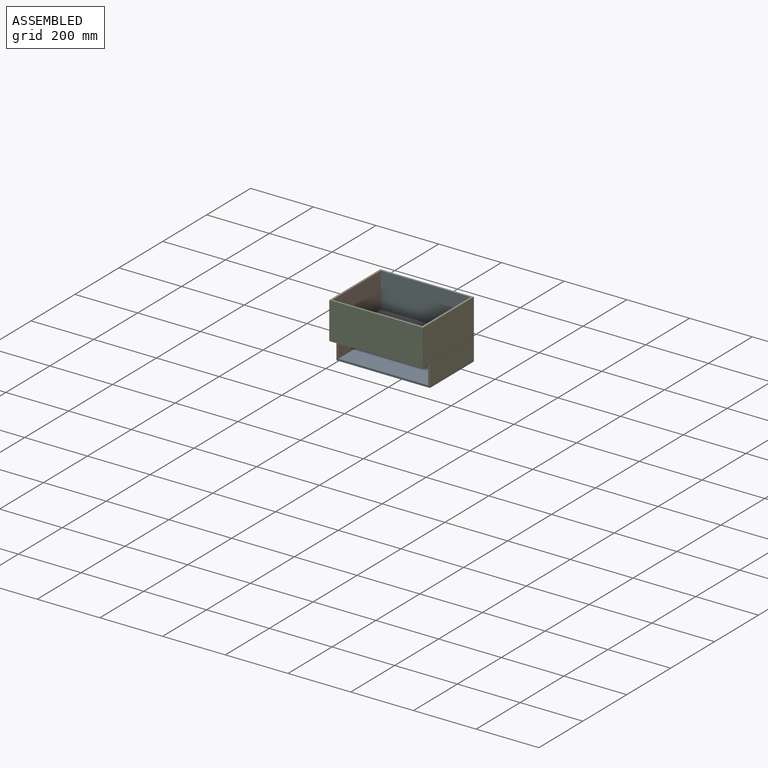
[diagram: assembled view]
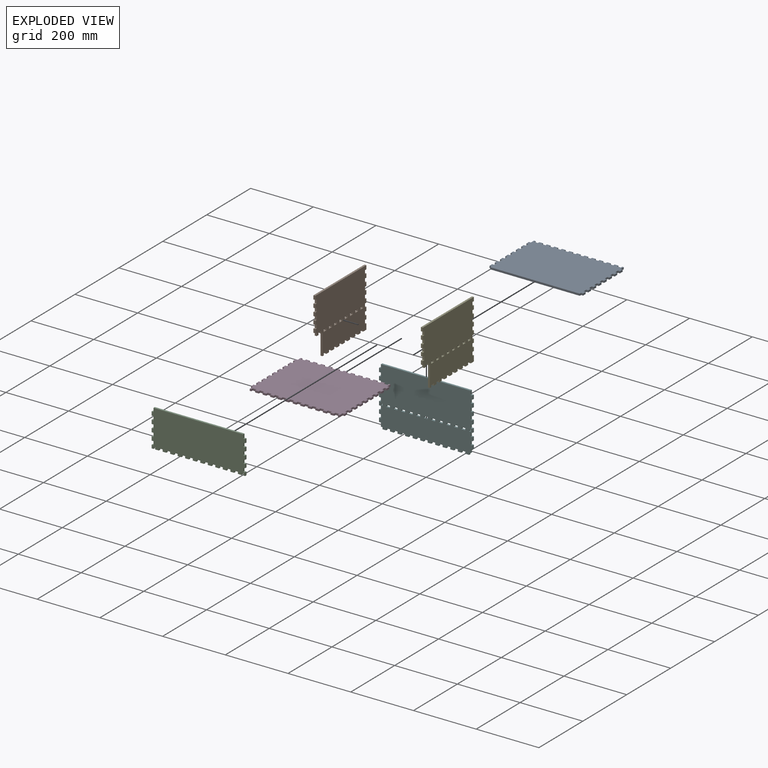
[diagram: exploded view]
GUIDED TOUR — MATED ASSEMBLY (Onshape document dc8e5bcc3b40e1b9c9413de5, AutoMate assembly dc8e5bcc3b40e1b9c9413de5_087644dee2c179cdf5d337a4_95e92eb41b837dada9675b92_default)

This assembly has 6 components, labeled P0..P5 below (a component is one placed occurrence of a part; the same part can appear more than once), held together by 5 mates. A mate is a constraint between two components; its type names the relative motion it leaves free:
  FASTENED — locks the two components together rigidly (no relative motion).
Axis/direction vectors are unit vectors and 'through' points are millimeter coordinates, both in the assembly's world frame.

MATES
  1. FASTENED "Fastened 4": P2 <-> P3, direction (0.000, -1.000, 0.000) through (420.35, -259.68, 232.40) mm
  2. FASTENED "Fastened 1": P4 <-> P3, direction (1.000, 0.000, 0.000) through (431.55, -233.48, 232.40) mm
  3. FASTENED "Fastened 5": P5 <-> P0, direction (0.000, 1.000, 0.000) through (420.35, -27.28, 164.70) mm
  4. FASTENED "Fastened 2": P3 <-> P1, direction (-1.000, 0.000, 0.000) through (133.15, -245.48, 232.40) mm
  5. FASTENED "Fastened 3": P5 <-> P3, direction (0.000, 1.000, 0.000) through (420.35, -27.28, 232.40) mm

ASSEMBLY ORDER
  1. P4 — the base component [order verified]
  2. P1 [order verified]
  3. P5 [order verified]
  4. P0 [order verified]
  5. P3 [order verified]
  6. P2 [order verified]
Order-tag legend:
  [order verified] — this step's position reverses a verified removal order: the component was checked to insert without passing through the ones already placed.

Of the 6 components, 6 carry the full construction recipe — the FeatureScript program that regenerates the part's solid from scratch; the rest are supplied as boundary geometry only.
Each toured component is shown spotlighted twice — in the assembled view, then in the exploded view, where a leader line traces a displaced component back to its assembled socket (saturated green if recipe-attached, orange if geometry-only; every other component desaturated gray) — followed by its recipe or geometry summary and the mates that hold it.
NOTE — document 2 of 3 of this assembly tour. The two overview renders and the header above are repeated from document 1; the component sections below continue where the previous document stopped.
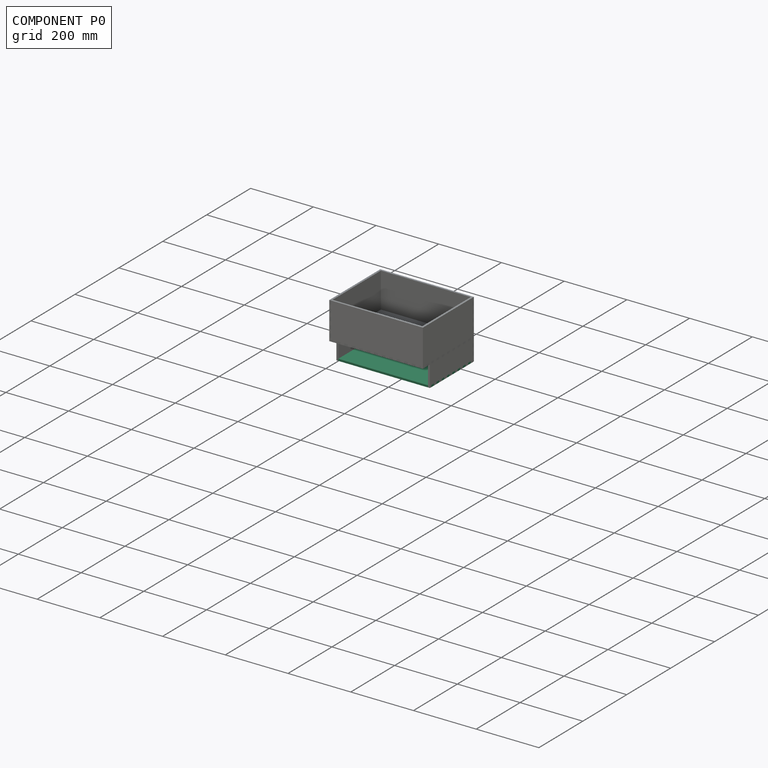
[diagram: component P0 — assembled]
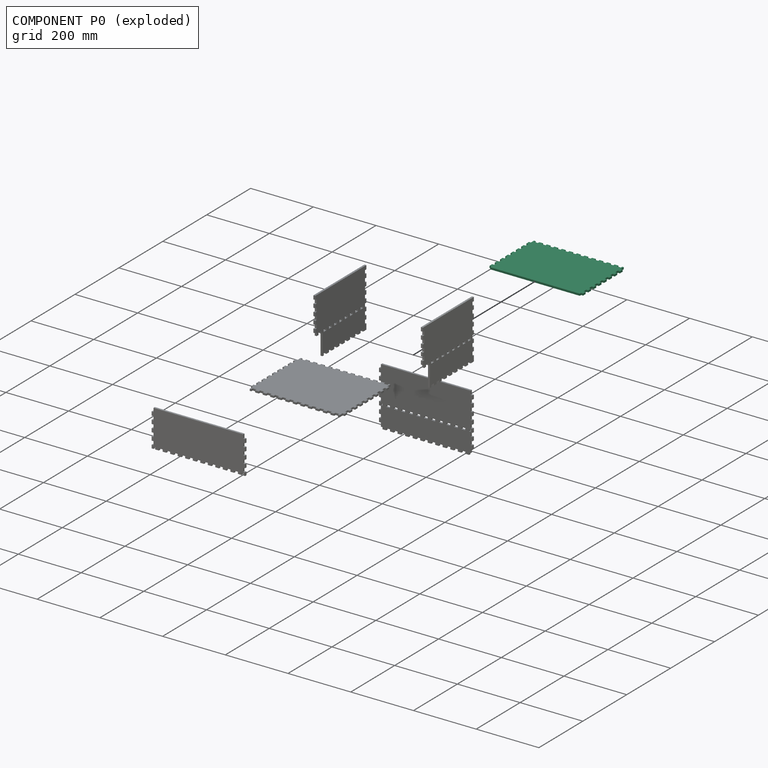
[diagram: component P0 — exploded]
COMPONENT P0 — recipe-attached (CADFS 00861204, mesh-verified: the recipe's output STEP matches this component's geometry to below the mesh-comparison resolution (tessellation chordal tolerance ~0.539 mm)).
Held by: FASTENED mate "Fastened 5" to P5.
Construction recipe (FeatureScript — the CAD program that rebuilds this solid; sketch coordinates are in the units given by the * unit suffixes, e.g. mm):

FeatureScript 1511;
import(path : "onshape/std/geometry.fs", version : "1511.0");
import(path : "onshape/std/common.fs", version : "1511.0");
const mm = millimeter;
const VERTEX = EntityType.VERTEX;
const EDGE = EntityType.EDGE;
const FACE = EntityType.FACE;
const BODY = EntityType.BODY;
function v(x, y){return vector(x, y);}
function OD(order){return orderDisambiguation(order);}
function OSD(set){return originalSetDisambiguation(set);}
function TD(topology){return topologyDisambiguation(topology);}
function TDD(query){return trueDependencyDisambiguation(query);}
function sQuery(a, b, c) {return sketchEntityQuery(a, b, c);}

annotation { "Feature Type Name" : "Feature", "Feature Type Description" : "" }
export const myFeature = defineFeature(function(context is Context, id is Id, definition is map)
    precondition{}
    {
        {
            var Q0;
            Q0=qCreatedBy(makeId("Top.planeOp"),FACE);
            var sketch = newSketch(context, id + "F0", { "sketchPlane" : qUnion([Q0])});
            skLineSegment(sketch, "E0.bottom", {"start": v(143, 110) * mm, "end": v(-143, 110) * mm});
            skLineSegment(sketch, "E0.top", {"start": v(143, -110) * mm, "end": v(-143, -110) * mm});
            skLineSegment(sketch, "E0.left", {"start": v(143, 110) * mm, "end": v(143, -110) * mm});
            skLineSegment(sketch, "E0.right", {"start": v(-143, 110) * mm, "end": v(-143, -110) * mm});
            skPoint(sketch, "E0.middle", {"position": v(0, 0) * mm});
            skSolve(sketch);
        }
        {
            var Q0;
            Q0=qSketchRegion(id+"F0",true);
            extrude(context, id + "F1", {"entities" : qUnion([Q0]), "depth" : 6.2 * mm, "offsetDistance" : 25 * mm});
        }
        {
            var Q0;
            Q0=makeQuery(id+"F1.opExtrude","CAP_FACE",FACE,{"disambiguationData":[OSD([sQuery(id+"F0.wireOp",EDGE,"E0.bottom"),sQuery(id+"F0.wireOp",EDGE,"E0.top"),sQuery(id+"F0.wireOp",EDGE,"E0.left"),sQuery(id+"F0.wireOp",EDGE,"E0.right")])],"isStart":false});
            var sketch = newSketch(context, id + "F2", { "sketchPlane" : qUnion([Q0])});
            skLineSegment(sketch, "E1", {"start": v(0, 110) * mm, "end": v(0, 116.2) * mm, "construction": true});
            skLineSegment(sketch, "E2.bottom", {"start": v(6, 116.2) * mm, "end": v(-6, 116.2) * mm});
            skLineSegment(sketch, "E2.top", {"start": v(6, 110) * mm, "end": v(-6, 110) * mm});
            skLineSegment(sketch, "E2.left", {"start": v(6, 116.2) * mm, "end": v(6, 110) * mm});
            skLineSegment(sketch, "E2.right", {"start": v(-6, 116.2) * mm, "end": v(-6, 110) * mm});
            skPoint(sketch, "E2.middle", {"position": v(0, 113.1) * mm});
            skLineSegment(sketch, "E3.1.0.0", {"start": v(30, 116.2) * mm, "end": v(18, 116.2) * mm});
            skLineSegment(sketch, "E3.1.0.1", {"start": v(30, 116.2) * mm, "end": v(30, 110) * mm});
            skLineSegment(sketch, "E3.1.0.2", {"start": v(18, 116.2) * mm, "end": v(18, 110) * mm});
            skLineSegment(sketch, "E3.1.0.3", {"start": v(30, 110) * mm, "end": v(18, 110) * mm});
            skLineSegment(sketch, "E3.2.0.0", {"start": v(54, 116.2) * mm, "end": v(42, 116.2) * mm});
            skLineSegment(sketch, "E3.2.0.1", {"start": v(54, 116.2) * mm, "end": v(54, 110) * mm});
            skLineSegment(sketch, "E3.2.0.2", {"start": v(42, 116.2) * mm, "end": v(42, 110) * mm});
            skLineSegment(sketch, "E3.2.0.3", {"start": v(54, 110) * mm, "end": v(42, 110) * mm});
            skLineSegment(sketch, "E3.3.0.0", {"start": v(78, 116.2) * mm, "end": v(66, 116.2) * mm});
            skLineSegment(sketch, "E3.3.0.1", {"start": v(78, 116.2) * mm, "end": v(78, 110) * mm});
            skLineSegment(sketch, "E3.3.0.2", {"start": v(66, 116.2) * mm, "end": v(66, 110) * mm});
            skLineSegment(sketch, "E3.3.0.3", {"start": v(78, 110) * mm, "end": v(66, 110) * mm});
            skLineSegment(sketch, "E3.4.0.0", {"start": v(102, 116.2) * mm, "end": v(90, 116.2) * mm});
            skLineSegment(sketch, "E3.4.0.1", {"start": v(102, 116.2) * mm, "end": v(102, 110) * mm});
            skLineSegment(sketch, "E3.4.0.2", {"start": v(90, 116.2) * mm, "end": v(90, 110) * mm});
            skLineSegment(sketch, "E3.4.0.3", {"start": v(102, 110) * mm, "end": v(90, 110) * mm});
            skLineSegment(sketch, "E3.5.0.0", {"start": v(126, 116.2) * mm, "end": v(114, 116.2) * mm});
            skLineSegment(sketch, "E3.5.0.1", {"start": v(126, 116.2) * mm, "end": v(126, 110) * mm});
            skLineSegment(sketch, "E3.5.0.2", {"start": v(114, 116.2) * mm, "end": v(114, 110) * mm});
            skLineSegment(sketch, "E3.5.0.3", {"start": v(126, 110) * mm, "end": v(114, 110) * mm});
            skLineSegment(sketch, "E3.6.0.0", {"start": v(143, 116.2) * mm, "end": v(138, 116.2) * mm});
            skLineSegment(sketch, "E3.6.0.2", {"start": v(138, 116.2) * mm, "end": v(138, 110) * mm});
            skLineSegment(sketch, "E3.6.0.3", {"start": v(143, 110) * mm, "end": v(138, 110) * mm});
            skLineSegment(sketch, "E3.direction1", {"start": v(-6, 116.2) * mm, "end": v(18, 116.2) * mm, "construction": true});
            skLineSegment(sketch, "E4", {"start": v(143, 110) * mm, "end": v(143, 116.2) * mm});
            skPoint(sketch, "E5.orphan", {"position": v(150, 110) * mm});
            skLineSegment(sketch, "E6.MirrorCS", {"start": v(-102, 110) * mm, "end": v(-90, 110) * mm});
            skLineSegment(sketch, "E7.MirrorCS", {"start": v(-143, 116.2) * mm, "end": v(-138, 116.2) * mm});
            skLineSegment(sketch, "E8.MirrorCS", {"start": v(-138, 116.2) * mm, "end": v(-138, 110) * mm});
            skLineSegment(sketch, "E9.MirrorCS", {"start": v(-30, 116.2) * mm, "end": v(-30, 110) * mm});
            skLineSegment(sketch, "E10.MirrorCS", {"start": v(-66, 116.2) * mm, "end": v(-66, 110) * mm});
            skLineSegment(sketch, "E11.MirrorCS", {"start": v(-126, 116.2) * mm, "end": v(-126, 110) * mm});
            skLineSegment(sketch, "E12.MirrorCS", {"start": v(-54, 110) * mm, "end": v(-42, 110) * mm});
            skLineSegment(sketch, "E13.MirrorCS", {"start": v(-143, 110) * mm, "end": v(-143, 116.2) * mm});
            skLineSegment(sketch, "E14.MirrorCS", {"start": v(-54, 116.2) * mm, "end": v(-54, 110) * mm});
            skLineSegment(sketch, "E15.MirrorCS", {"start": v(-114, 116.2) * mm, "end": v(-114, 110) * mm});
            skLineSegment(sketch, "E16.MirrorCS", {"start": v(-102, 116.2) * mm, "end": v(-90, 116.2) * mm});
            skLineSegment(sketch, "E17.MirrorCS", {"start": v(-102, 116.2) * mm, "end": v(-102, 110) * mm});
            skLineSegment(sketch, "E18.MirrorCS", {"start": v(-42, 116.2) * mm, "end": v(-42, 110) * mm});
            skLineSegment(sketch, "E19.MirrorCS", {"start": v(-54, 116.2) * mm, "end": v(-42, 116.2) * mm});
            skLineSegment(sketch, "E20.MirrorCS", {"start": v(-143, 110) * mm, "end": v(-138, 110) * mm});
            skLineSegment(sketch, "E21.MirrorCS", {"start": v(-90, 116.2) * mm, "end": v(-90, 110) * mm});
            skLineSegment(sketch, "E22.MirrorCS", {"start": v(-78, 116.2) * mm, "end": v(-78, 110) * mm});
            skLineSegment(sketch, "E23.MirrorCS", {"start": v(-78, 110) * mm, "end": v(-66, 110) * mm});
            skLineSegment(sketch, "E24.MirrorCS", {"start": v(-126, 116.2) * mm, "end": v(-114, 116.2) * mm});
            skLineSegment(sketch, "E25.MirrorCS", {"start": v(-78, 116.2) * mm, "end": v(-66, 116.2) * mm});
            skLineSegment(sketch, "E26.MirrorCS", {"start": v(-126, 110) * mm, "end": v(-114, 110) * mm});
            skLineSegment(sketch, "E27.MirrorCS", {"start": v(-30, 110) * mm, "end": v(-18, 110) * mm});
            skPoint(sketch, "E28.MirrorP", {"position": v(-150, 110) * mm});
            skLineSegment(sketch, "E29.MirrorCS", {"start": v(-30, 116.2) * mm, "end": v(-18, 116.2) * mm});
            skLineSegment(sketch, "E30.MirrorCS", {"start": v(-18, 116.2) * mm, "end": v(-18, 110) * mm});
            skSolve(sketch);
        }
        {
            var Q0;
            Q0=makeQuery(id+"F2.imprint","IMPRINT",FACE,{"disambiguationData":[TD([[makeQuery(id+"F2.imprint","IMPRINT",EDGE,{"derivedFrom":sQuery(id+"F2.wireOp",EDGE,"E3.6.0.0")}),1.0]])]});
            var Q1;
            Q1=makeQuery(id+"F2.imprint","IMPRINT",FACE,{"disambiguationData":[TD([[makeQuery(id+"F2.imprint","IMPRINT",EDGE,{"derivedFrom":sQuery(id+"F2.wireOp",EDGE,"E3.5.0.0")}),1.0]])]});
            var Q2;
            Q2=makeQuery(id+"F2.imprint","IMPRINT",FACE,{"disambiguationData":[TD([[makeQuery(id+"F2.imprint","IMPRINT",EDGE,{"derivedFrom":sQuery(id+"F2.wireOp",EDGE,"E3.4.0.0")}),1.0]])]});
            var Q3;
            Q3=makeQuery(id+"F2.imprint","IMPRINT",FACE,{"disambiguationData":[TD([[makeQuery(id+"F2.imprint","IMPRINT",EDGE,{"derivedFrom":sQuery(id+"F2.wireOp",EDGE,"E3.3.0.0")}),1.0]])]});
            var Q4;
            Q4=makeQuery(id+"F2.imprint","IMPRINT",FACE,{"disambiguationData":[TD([[makeQuery(id+"F2.imprint","IMPRINT",EDGE,{"derivedFrom":sQuery(id+"F2.wireOp",EDGE,"E3.2.0.0")}),1.0]])]});
            var Q5;
            Q5=makeQuery(id+"F2.imprint","IMPRINT",FACE,{"disambiguationData":[TD([[makeQuery(id+"F2.imprint","IMPRINT",EDGE,{"derivedFrom":sQuery(id+"F2.wireOp",EDGE,"E3.1.0.0")}),1.0]])]});
            var Q6;
            Q6=makeQuery(id+"F2.imprint","IMPRINT",FACE,{"disambiguationData":[TD([[makeQuery(id+"F2.imprint","IMPRINT",EDGE,{"derivedFrom":sQuery(id+"F2.wireOp",EDGE,"E2.bottom")}),1.0]])]});
            var Q7;
            Q7=makeQuery(id+"F2.imprint","IMPRINT",FACE,{"disambiguationData":[TD([[makeQuery(id+"F2.imprint","IMPRINT",EDGE,{"derivedFrom":sQuery(id+"F2.wireOp",EDGE,"E9.MirrorCS")}),1.0]])]});
            var Q8;
            Q8=makeQuery(id+"F2.imprint","IMPRINT",FACE,{"disambiguationData":[TD([[makeQuery(id+"F2.imprint","IMPRINT",EDGE,{"derivedFrom":sQuery(id+"F2.wireOp",EDGE,"E12.MirrorCS")}),-1.0]])]});
            var Q9;
            Q9=makeQuery(id+"F2.imprint","IMPRINT",FACE,{"disambiguationData":[TD([[makeQuery(id+"F2.imprint","IMPRINT",EDGE,{"derivedFrom":sQuery(id+"F2.wireOp",EDGE,"E10.MirrorCS")}),-1.0]])]});
            var Q10;
            Q10=makeQuery(id+"F2.imprint","IMPRINT",FACE,{"disambiguationData":[TD([[makeQuery(id+"F2.imprint","IMPRINT",EDGE,{"derivedFrom":sQuery(id+"F2.wireOp",EDGE,"E6.MirrorCS")}),-1.0]])]});
            var Q11;
            Q11=makeQuery(id+"F2.imprint","IMPRINT",FACE,{"disambiguationData":[TD([[makeQuery(id+"F2.imprint","IMPRINT",EDGE,{"derivedFrom":sQuery(id+"F2.wireOp",EDGE,"E11.MirrorCS")}),1.0]])]});
            var Q12;
            Q12=makeQuery(id+"F2.imprint","IMPRINT",FACE,{"disambiguationData":[TD([[makeQuery(id+"F2.imprint","IMPRINT",EDGE,{"derivedFrom":sQuery(id+"F2.wireOp",EDGE,"E7.MirrorCS")}),-1.0]])]});
            var Q13;
            Q13=makeQuery(id+"F1.opExtrude","CAP_FACE",FACE,{"disambiguationData":[OSD([sQuery(id+"F0.wireOp",EDGE,"E0.bottom"),sQuery(id+"F0.wireOp",EDGE,"E0.top"),sQuery(id+"F0.wireOp",EDGE,"E0.left"),sQuery(id+"F0.wireOp",EDGE,"E0.right")])],"isStart":true});
            extrude(context, id + "F3", {"entities" : qUnion([Q0, Q1, Q2, Q3, Q4, Q5, Q6, Q7, Q8, Q9, Q10, Q11, Q12]), "operationType" : NewBodyOperationType.ADD, "endBound" : BoundingType.UP_TO_SURFACE, "oppositeDirection" : true, "depth" : 25 * mm, "endBoundEntityFace" : qUnion([Q13]), "offsetDistance" : 25 * mm});
        }
        {
            var Q0;
            Q0=makeQuery(id+"F3.boolean.opBoolean","MERGE",FACE,{"derivedFrom":[makeQuery(id+"F1.opExtrude","CAP_FACE",FACE,{"disambiguationData":[OSD([sQuery(id+"F0.wireOp",EDGE,"E0.bottom"),sQuery(id+"F0.wireOp",EDGE,"E0.top"),sQuery(id+"F0.wireOp",EDGE,"E0.left"),sQuery(id+"F0.wireOp",EDGE,"E0.right")])],"isStart":false}),makeQuery(id+"F3.opExtrude","CAP_FACE",FACE,{"disambiguationData":[OSD([sQuery(id+"F2.wireOp",EDGE,"E2.bottom"),sQuery(id+"F2.wireOp",EDGE,"E2.top"),sQuery(id+"F2.wireOp",EDGE,"E2.left"),sQuery(id+"F2.wireOp",EDGE,"E2.right")])],"isStart":true}),makeQuery(id+"F3.opExtrude","CAP_FACE",FACE,{"disambiguationData":[OSD([sQuery(id+"F2.wireOp",EDGE,"E3.1.0.0"),sQuery(id+"F2.wireOp",EDGE,"E3.1.0.1"),sQuery(id+"F2.wireOp",EDGE,"E3.1.0.2"),sQuery(id+"F2.wireOp",EDGE,"E3.1.0.3")])],"isStart":true}),makeQuery(id+"F3.opExtrude","CAP_FACE",FACE,{"disambiguationData":[OSD([sQuery(id+"F2.wireOp",EDGE,"E3.2.0.0"),sQuery(id+"F2.wireOp",EDGE,"E3.2.0.1"),sQuery(id+"F2.wireOp",EDGE,"E3.2.0.2"),sQuery(id+"F2.wireOp",EDGE,"E3.2.0.3")])],"isStart":true}),makeQuery(id+"F3.opExtrude","CAP_FACE",FACE,{"disambiguationData":[OSD([sQuery(id+"F2.wireOp",EDGE,"E3.3.0.0"),sQuery(id+"F2.wireOp",EDGE,"E3.3.0.1"),sQuery(id+"F2.wireOp",EDGE,"E3.3.0.2"),sQuery(id+"F2.wireOp",EDGE,"E3.3.0.3")])],"isStart":true}),makeQuery(id+"F3.opExtrude","CAP_FACE",FACE,{"disambiguationData":[OSD([sQuery(id+"F2.wireOp",EDGE,"E3.4.0.0"),sQuery(id+"F2.wireOp",EDGE,"E3.4.0.1"),sQuery(id+"F2.wireOp",EDGE,"E3.4.0.2"),sQuery(id+"F2.wireOp",EDGE,"E3.4.0.3")])],"isStart":true}),makeQuery(id+"F3.opExtrude","CAP_FACE",FACE,{"disambiguationData":[OSD([sQuery(id+"F2.wireOp",EDGE,"E3.5.0.0"),sQuery(id+"F2.wireOp",EDGE,"E3.5.0.1"),sQuery(id+"F2.wireOp",EDGE,"E3.5.0.2"),sQuery(id+"F2.wireOp",EDGE,"E3.5.0.3")])],"isStart":true}),makeQuery(id+"F3.opExtrude","CAP_FACE",FACE,{"disambiguationData":[OSD([sQuery(id+"F2.wireOp",EDGE,"E3.6.0.0"),sQuery(id+"F2.wireOp",EDGE,"E3.6.0.2"),sQuery(id+"F2.wireOp",EDGE,"E3.6.0.3"),sQuery(id+"F2.wireOp",EDGE,"E4")])],"isStart":true}),makeQuery(id+"F3.opExtrude","CAP_FACE",FACE,{"disambiguationData":[OSD([sQuery(id+"F2.wireOp",EDGE,"E6.MirrorCS"),sQuery(id+"F2.wireOp",EDGE,"E16.MirrorCS"),sQuery(id+"F2.wireOp",EDGE,"E17.MirrorCS"),sQuery(id+"F2.wireOp",EDGE,"E21.MirrorCS")])],"isStart":true}),makeQuery(id+"F3.opExtrude","CAP_FACE",FACE,{"disambiguationData":[OSD([sQuery(id+"F2.wireOp",EDGE,"E7.MirrorCS"),sQuery(id+"F2.wireOp",EDGE,"E8.MirrorCS"),sQuery(id+"F2.wireOp",EDGE,"E13.MirrorCS"),sQuery(id+"F2.wireOp",EDGE,"E20.MirrorCS")])],"isStart":true}),makeQuery(id+"F3.opExtrude","CAP_FACE",FACE,{"disambiguationData":[OSD([sQuery(id+"F2.wireOp",EDGE,"E9.MirrorCS"),sQuery(id+"F2.wireOp",EDGE,"E27.MirrorCS"),sQuery(id+"F2.wireOp",EDGE,"E29.MirrorCS"),sQuery(id+"F2.wireOp",EDGE,"E30.MirrorCS")])],"isStart":true}),makeQuery(id+"F3.opExtrude","CAP_FACE",FACE,{"disambiguationData":[OSD([sQuery(id+"F2.wireOp",EDGE,"E10.MirrorCS"),sQuery(id+"F2.wireOp",EDGE,"E22.MirrorCS"),sQuery(id+"F2.wireOp",EDGE,"E23.MirrorCS"),sQuery(id+"F2.wireOp",EDGE,"E25.MirrorCS")])],"isStart":true}),makeQuery(id+"F3.opExtrude","CAP_FACE",FACE,{"disambiguationData":[OSD([sQuery(id+"F2.wireOp",EDGE,"E11.MirrorCS"),sQuery(id+"F2.wireOp",EDGE,"E15.MirrorCS"),sQuery(id+"F2.wireOp",EDGE,"E24.MirrorCS"),sQuery(id+"F2.wireOp",EDGE,"E26.MirrorCS")])],"isStart":true}),makeQuery(id+"F3.opExtrude","CAP_FACE",FACE,{"disambiguationData":[OSD([sQuery(id+"F2.wireOp",EDGE,"E12.MirrorCS"),sQuery(id+"F2.wireOp",EDGE,"E14.MirrorCS"),sQuery(id+"F2.wireOp",EDGE,"E18.MirrorCS"),sQuery(id+"F2.wireOp",EDGE,"E19.MirrorCS")])],"isStart":true})]});
            var sketch = newSketch(context, id + "F4", { "sketchPlane" : qUnion([Q0])});
            skLineSegment(sketch, "E31", {"start": v(-138, 110) * mm, "end": v(143, 110) * mm, "construction": true});
            skLineSegment(sketch, "E32", {"start": v(0, 0) * mm, "end": v(143, 0) * mm, "construction": true});
            skLineSegment(sketch, "E33", {"start": v(143, 0) * mm, "end": v(149.2, 0) * mm, "construction": true});
            skLineSegment(sketch, "E34.bottom", {"start": v(149.2, 6) * mm, "end": v(143, 6) * mm});
            skLineSegment(sketch, "E34.top", {"start": v(149.2, -6) * mm, "end": v(143, -6) * mm});
            skLineSegment(sketch, "E34.left", {"start": v(149.2, 6) * mm, "end": v(149.2, -6) * mm});
            skLineSegment(sketch, "E34.right", {"start": v(143, 6) * mm, "end": v(143, -6) * mm});
            skPoint(sketch, "E34.middle", {"position": v(146.1, 0) * mm});
            skLineSegment(sketch, "E35.0.1.0", {"start": v(149.2, 30) * mm, "end": v(143, 30) * mm});
            skLineSegment(sketch, "E35.0.1.1", {"start": v(143, 30) * mm, "end": v(143, 18) * mm});
            skLineSegment(sketch, "E35.0.1.2", {"start": v(149.2, 30) * mm, "end": v(149.2, 18) * mm});
            skLineSegment(sketch, "E35.0.1.3", {"start": v(149.2, 18) * mm, "end": v(143, 18) * mm});
            skLineSegment(sketch, "E35.0.2.0", {"start": v(149.2, 54) * mm, "end": v(143, 54) * mm});
            skLineSegment(sketch, "E35.0.2.1", {"start": v(143, 54) * mm, "end": v(143, 42) * mm});
            skLineSegment(sketch, "E35.0.2.2", {"start": v(149.2, 54) * mm, "end": v(149.2, 42) * mm});
            skLineSegment(sketch, "E35.0.2.3", {"start": v(149.2, 42) * mm, "end": v(143, 42) * mm});
            skLineSegment(sketch, "E35.0.3.0", {"start": v(149.2, 78) * mm, "end": v(143, 78) * mm});
            skLineSegment(sketch, "E35.0.3.1", {"start": v(143, 78) * mm, "end": v(143, 66) * mm});
            skLineSegment(sketch, "E35.0.3.2", {"start": v(149.2, 78) * mm, "end": v(149.2, 66) * mm});
            skLineSegment(sketch, "E35.0.3.3", {"start": v(149.2, 66) * mm, "end": v(143, 66) * mm});
            skLineSegment(sketch, "E35.0.4.0", {"start": v(149.2, 102) * mm, "end": v(143, 102) * mm});
            skLineSegment(sketch, "E35.0.4.1", {"start": v(143, 102) * mm, "end": v(143, 90) * mm});
            skLineSegment(sketch, "E35.0.4.2", {"start": v(149.2, 102) * mm, "end": v(149.2, 90) * mm});
            skLineSegment(sketch, "E35.0.4.3", {"start": v(149.2, 90) * mm, "end": v(143, 90) * mm});
            skLineSegment(sketch, "E35.direction1", {"start": v(143, 6) * mm, "end": v(168, 6) * mm, "construction": true});
            skLineSegment(sketch, "E35.direction2", {"start": v(143, 6) * mm, "end": v(143, 30) * mm, "construction": true});
            skLineSegment(sketch, "E36.MirrorCS", {"start": v(143, -30) * mm, "end": v(143, -18) * mm});
            skLineSegment(sketch, "E37.MirrorCS", {"start": v(149.2, -78) * mm, "end": v(149.2, -66) * mm});
            skLineSegment(sketch, "E38.MirrorCS", {"start": v(149.2, -66) * mm, "end": v(143, -66) * mm});
            skLineSegment(sketch, "E39.MirrorCS", {"start": v(149.2, -102) * mm, "end": v(143, -102) * mm});
            skLineSegment(sketch, "E40.MirrorCS", {"start": v(143, -102) * mm, "end": v(143, -90) * mm});
            skLineSegment(sketch, "E41.MirrorCS", {"start": v(149.2, -102) * mm, "end": v(149.2, -90) * mm});
            skLineSegment(sketch, "E42.MirrorCS", {"start": v(149.2, -90) * mm, "end": v(143, -90) * mm});
            skLineSegment(sketch, "E43.MirrorCS", {"start": v(143, -6) * mm, "end": v(143, -30) * mm, "construction": true});
            skLineSegment(sketch, "E44.MirrorCS", {"start": v(143, -54) * mm, "end": v(143, -42) * mm});
            skLineSegment(sketch, "E45.MirrorCS", {"start": v(149.2, -42) * mm, "end": v(143, -42) * mm});
            skLineSegment(sketch, "E46.MirrorCS", {"start": v(149.2, -54) * mm, "end": v(143, -54) * mm});
            skLineSegment(sketch, "E47.MirrorCS", {"start": v(149.2, -54) * mm, "end": v(149.2, -42) * mm});
            skLineSegment(sketch, "E48.MirrorCS", {"start": v(149.2, -18) * mm, "end": v(143, -18) * mm});
            skLineSegment(sketch, "E49.MirrorCS", {"start": v(143, -78) * mm, "end": v(143, -66) * mm});
            skLineSegment(sketch, "E50.MirrorCS", {"start": v(149.2, -78) * mm, "end": v(143, -78) * mm});
            skLineSegment(sketch, "E51.MirrorCS", {"start": v(149.2, -30) * mm, "end": v(143, -30) * mm});
            skLineSegment(sketch, "E52.MirrorCS", {"start": v(149.2, -30) * mm, "end": v(149.2, -18) * mm});
            skLineSegment(sketch, "E53.MirrorCS", {"start": v(-143, 6) * mm, "end": v(-143, -6) * mm});
            skLineSegment(sketch, "E54.MirrorCS", {"start": v(-149.2, 6) * mm, "end": v(-149.2, -6) * mm});
            skLineSegment(sketch, "E55.MirrorCS", {"start": v(-149.2, -6) * mm, "end": v(-143, -6) * mm});
            skLineSegment(sketch, "E56.MirrorCS", {"start": v(-149.2, 6) * mm, "end": v(-143, 6) * mm});
            skLineSegment(sketch, "E57.MirrorCS", {"start": v(-143, 0) * mm, "end": v(-149.2, 0) * mm, "construction": true});
            skLineSegment(sketch, "E58.MirrorCS", {"start": v(-143, 30) * mm, "end": v(-143, 18) * mm});
            skLineSegment(sketch, "E59.MirrorCS", {"start": v(-149.2, -30) * mm, "end": v(-143, -30) * mm});
            skLineSegment(sketch, "E60.MirrorCS", {"start": v(-143, -30) * mm, "end": v(-143, -18) * mm});
            skLineSegment(sketch, "E61.MirrorCS", {"start": v(-149.2, 30) * mm, "end": v(-143, 30) * mm});
            skLineSegment(sketch, "E62.MirrorCS", {"start": v(-149.2, 78) * mm, "end": v(-149.2, 66) * mm});
            skLineSegment(sketch, "E63.MirrorCS", {"start": v(-143, -54) * mm, "end": v(-143, -42) * mm});
            skLineSegment(sketch, "E64.MirrorCS", {"start": v(-149.2, 66) * mm, "end": v(-143, 66) * mm});
            skLineSegment(sketch, "E65.MirrorCS", {"start": v(-149.2, -42) * mm, "end": v(-143, -42) * mm});
            skLineSegment(sketch, "E66.MirrorCS", {"start": v(-149.2, 102) * mm, "end": v(-143, 102) * mm});
            skLineSegment(sketch, "E67.MirrorCS", {"start": v(-149.2, -54) * mm, "end": v(-143, -54) * mm});
            skLineSegment(sketch, "E68.MirrorCS", {"start": v(-149.2, -90) * mm, "end": v(-143, -90) * mm});
            skLineSegment(sketch, "E69.MirrorCS", {"start": v(-143, 102) * mm, "end": v(-143, 90) * mm});
            skLineSegment(sketch, "E70.MirrorCS", {"start": v(-149.2, -54) * mm, "end": v(-149.2, -42) * mm});
            skLineSegment(sketch, "E71.MirrorCS", {"start": v(-143, -102) * mm, "end": v(-143, -90) * mm});
            skLineSegment(sketch, "E72.MirrorCS", {"start": v(-149.2, 102) * mm, "end": v(-149.2, 90) * mm});
            skLineSegment(sketch, "E73.MirrorCS", {"start": v(-149.2, -18) * mm, "end": v(-143, -18) * mm});
            skLineSegment(sketch, "E74.MirrorCS", {"start": v(-149.2, -102) * mm, "end": v(-149.2, -90) * mm});
            skLineSegment(sketch, "E75.MirrorCS", {"start": v(-143, 78) * mm, "end": v(-143, 66) * mm});
            skLineSegment(sketch, "E76.MirrorCS", {"start": v(-149.2, 18) * mm, "end": v(-143, 18) * mm});
            skLineSegment(sketch, "E77.MirrorCS", {"start": v(-149.2, 42) * mm, "end": v(-143, 42) * mm});
            skLineSegment(sketch, "E78.MirrorCS", {"start": v(-149.2, -102) * mm, "end": v(-143, -102) * mm});
            skLineSegment(sketch, "E79.MirrorCS", {"start": v(-149.2, 30) * mm, "end": v(-149.2, 18) * mm});
            skLineSegment(sketch, "E80.MirrorCS", {"start": v(-149.2, -66) * mm, "end": v(-143, -66) * mm});
            skLineSegment(sketch, "E81.MirrorCS", {"start": v(-149.2, 54) * mm, "end": v(-149.2, 42) * mm});
            skLineSegment(sketch, "E82.MirrorCS", {"start": v(-149.2, -78) * mm, "end": v(-149.2, -66) * mm});
            skLineSegment(sketch, "E83.MirrorCS", {"start": v(-143, -78) * mm, "end": v(-143, -66) * mm});
            skLineSegment(sketch, "E84.MirrorCS", {"start": v(-149.2, -30) * mm, "end": v(-149.2, -18) * mm});
            skLineSegment(sketch, "E85.MirrorCS", {"start": v(-149.2, 54) * mm, "end": v(-143, 54) * mm});
            skLineSegment(sketch, "E86.MirrorCS", {"start": v(-143, -6) * mm, "end": v(-143, -30) * mm, "construction": true});
            skLineSegment(sketch, "E87.MirrorCS", {"start": v(-143, 54) * mm, "end": v(-143, 42) * mm});
            skLineSegment(sketch, "E88.MirrorCS", {"start": v(-143, 6) * mm, "end": v(-143, 30) * mm, "construction": true});
            skLineSegment(sketch, "E89.MirrorCS", {"start": v(-149.2, 78) * mm, "end": v(-143, 78) * mm});
            skLineSegment(sketch, "E90.MirrorCS", {"start": v(-149.2, -78) * mm, "end": v(-143, -78) * mm});
            skLineSegment(sketch, "E91.MirrorCS", {"start": v(-149.2, 90) * mm, "end": v(-143, 90) * mm});
            skLineSegment(sketch, "E92.MirrorCS", {"start": v(-143, 6) * mm, "end": v(-168, 6) * mm, "construction": true});
            skPoint(sketch, "E93.MirrorP", {"position": v(-146.1, 0) * mm});
            skSolve(sketch);
        }
        {
            var Q0;
            Q0=makeQuery(id+"F4.imprint","IMPRINT",FACE,{"disambiguationData":[TD([[makeQuery(id+"F4.imprint","IMPRINT",EDGE,{"derivedFrom":sQuery(id+"F4.wireOp",EDGE,"E39.MirrorCS")}),-1.0]])]});
            var Q1;
            Q1=makeQuery(id+"F4.imprint","IMPRINT",FACE,{"disambiguationData":[TD([[makeQuery(id+"F4.imprint","IMPRINT",EDGE,{"derivedFrom":sQuery(id+"F4.wireOp",EDGE,"E37.MirrorCS")}),1.0]])]});
            var Q2;
            Q2=makeQuery(id+"F4.imprint","IMPRINT",FACE,{"disambiguationData":[TD([[makeQuery(id+"F4.imprint","IMPRINT",EDGE,{"derivedFrom":sQuery(id+"F4.wireOp",EDGE,"E44.MirrorCS")}),1.0]])]});
            var Q3;
            Q3=makeQuery(id+"F4.imprint","IMPRINT",FACE,{"disambiguationData":[TD([[makeQuery(id+"F4.imprint","IMPRINT",EDGE,{"derivedFrom":sQuery(id+"F4.wireOp",EDGE,"E36.MirrorCS")}),1.0]])]});
            var Q4;
            Q4=makeQuery(id+"F4.imprint","IMPRINT",FACE,{"disambiguationData":[TD([[makeQuery(id+"F4.imprint","IMPRINT",EDGE,{"derivedFrom":sQuery(id+"F4.wireOp",EDGE,"E34.bottom")}),1.0]])]});
            var Q5;
            Q5=makeQuery(id+"F4.imprint","IMPRINT",FACE,{"disambiguationData":[TD([[makeQuery(id+"F4.imprint","IMPRINT",EDGE,{"derivedFrom":sQuery(id+"F4.wireOp",EDGE,"E35.0.1.0")}),1.0]])]});
            var Q6;
            Q6=makeQuery(id+"F4.imprint","IMPRINT",FACE,{"disambiguationData":[TD([[makeQuery(id+"F4.imprint","IMPRINT",EDGE,{"derivedFrom":sQuery(id+"F4.wireOp",EDGE,"E35.0.2.0")}),1.0]])]});
            var Q7;
            Q7=makeQuery(id+"F4.imprint","IMPRINT",FACE,{"disambiguationData":[TD([[makeQuery(id+"F4.imprint","IMPRINT",EDGE,{"derivedFrom":sQuery(id+"F4.wireOp",EDGE,"E35.0.3.0")}),1.0]])]});
            var Q8;
            Q8=makeQuery(id+"F4.imprint","IMPRINT",FACE,{"disambiguationData":[TD([[makeQuery(id+"F4.imprint","IMPRINT",EDGE,{"derivedFrom":sQuery(id+"F4.wireOp",EDGE,"E35.0.4.0")}),1.0]])]});
            var Q9;
            Q9=makeQuery(id+"F4.imprint","IMPRINT",FACE,{"disambiguationData":[TD([[makeQuery(id+"F4.imprint","IMPRINT",EDGE,{"derivedFrom":sQuery(id+"F4.wireOp",EDGE,"E66.MirrorCS")}),-1.0]])]});
            var Q10;
            Q10=makeQuery(id+"F4.imprint","IMPRINT",FACE,{"disambiguationData":[TD([[makeQuery(id+"F4.imprint","IMPRINT",EDGE,{"derivedFrom":sQuery(id+"F4.wireOp",EDGE,"E62.MirrorCS")}),1.0]])]});
            var Q11;
            Q11=makeQuery(id+"F4.imprint","IMPRINT",FACE,{"disambiguationData":[TD([[makeQuery(id+"F4.imprint","IMPRINT",EDGE,{"derivedFrom":sQuery(id+"F4.wireOp",EDGE,"E77.MirrorCS")}),1.0]])]});
            var Q12;
            Q12=makeQuery(id+"F4.imprint","IMPRINT",FACE,{"disambiguationData":[TD([[makeQuery(id+"F4.imprint","IMPRINT",EDGE,{"derivedFrom":sQuery(id+"F4.wireOp",EDGE,"E58.MirrorCS")}),-1.0]])]});
            var Q13;
            Q13=makeQuery(id+"F4.imprint","IMPRINT",FACE,{"disambiguationData":[TD([[makeQuery(id+"F4.imprint","IMPRINT",EDGE,{"derivedFrom":sQuery(id+"F4.wireOp",EDGE,"E53.MirrorCS")}),-1.0]])]});
            var Q14;
            Q14=makeQuery(id+"F4.imprint","IMPRINT",FACE,{"disambiguationData":[TD([[makeQuery(id+"F4.imprint","IMPRINT",EDGE,{"derivedFrom":sQuery(id+"F4.wireOp",EDGE,"E59.MirrorCS")}),1.0]])]});
            var Q15;
            Q15=makeQuery(id+"F4.imprint","IMPRINT",FACE,{"disambiguationData":[TD([[makeQuery(id+"F4.imprint","IMPRINT",EDGE,{"derivedFrom":sQuery(id+"F4.wireOp",EDGE,"E63.MirrorCS")}),-1.0]])]});
            var Q16;
            Q16=makeQuery(id+"F4.imprint","IMPRINT",FACE,{"disambiguationData":[TD([[makeQuery(id+"F4.imprint","IMPRINT",EDGE,{"derivedFrom":sQuery(id+"F4.wireOp",EDGE,"E80.MirrorCS")}),-1.0]])]});
            var Q17;
            Q17=makeQuery(id+"F4.imprint","IMPRINT",FACE,{"disambiguationData":[TD([[makeQuery(id+"F4.imprint","IMPRINT",EDGE,{"derivedFrom":sQuery(id+"F4.wireOp",EDGE,"E68.MirrorCS")}),-1.0]])]});
            var Q18;
            {var subQ0=sQuery(id+"F0.wireOp",EDGE,"E0.right");var subQ1=sQuery(id+"F0.wireOp",EDGE,"E0.left");var subQ2=sQuery(id+"F0.wireOp",EDGE,"E0.top");var subQ3=sQuery(id+"F0.wireOp",EDGE,"E0.bottom");Q18=makeQuery(id+"F3.boolean.opBoolean","MERGE",FACE,{"derivedFrom":[makeQuery(id+"F1.opExtrude","CAP_FACE",FACE,{"disambiguationData":[OSD([subQ3,subQ2,subQ1,subQ0])],"isStart":true}),makeQuery(id+"F3.opExtrude","CAP_FACE",FACE,{"disambiguationData":[OSD([subQ3,subQ2,subQ1,subQ0]),OD(0.0)],"isStart":false}),makeQuery(id+"F3.opExtrude","CAP_FACE",FACE,{"disambiguationData":[OSD([subQ3,subQ2,subQ1,subQ0]),OD(1.0)],"isStart":false}),makeQuery(id+"F3.opExtrude","CAP_FACE",FACE,{"disambiguationData":[OSD([subQ3,subQ2,subQ1,subQ0]),OD(2.0)],"isStart":false}),makeQuery(id+"F3.opExtrude","CAP_FACE",FACE,{"disambiguationData":[OSD([subQ3,subQ2,subQ1,subQ0]),OD(3.0)],"isStart":false}),makeQuery(id+"F3.opExtrude","CAP_FACE",FACE,{"disambiguationData":[OSD([subQ3,subQ2,subQ1,subQ0]),OD(4.0)],"isStart":false}),makeQuery(id+"F3.opExtrude","CAP_FACE",FACE,{"disambiguationData":[OSD([subQ3,subQ2,subQ1,subQ0]),OD(5.0)],"isStart":false}),makeQuery(id+"F3.opExtrude","CAP_FACE",FACE,{"disambiguationData":[OSD([subQ3,subQ2,subQ1,subQ0]),OD(6.0)],"isStart":false}),makeQuery(id+"F3.opExtrude","CAP_FACE",FACE,{"disambiguationData":[OSD([subQ3,subQ2,subQ1,subQ0]),OD(7.0)],"isStart":false}),makeQuery(id+"F3.opExtrude","CAP_FACE",FACE,{"disambiguationData":[OSD([subQ3,subQ2,subQ1,subQ0]),OD(8.0)],"isStart":false}),makeQuery(id+"F3.opExtrude","CAP_FACE",FACE,{"disambiguationData":[OSD([subQ3,subQ2,subQ1,subQ0]),OD(9.0)],"isStart":false}),makeQuery(id+"F3.opExtrude","CAP_FACE",FACE,{"disambiguationData":[OSD([subQ3,subQ2,subQ1,subQ0]),OD(10.0)],"isStart":false}),makeQuery(id+"F3.opExtrude","CAP_FACE",FACE,{"disambiguationData":[OSD([subQ3,subQ2,subQ1,subQ0]),OD(11.0)],"isStart":false}),makeQuery(id+"F3.opExtrude","CAP_FACE",FACE,{"disambiguationData":[OSD([subQ3,subQ2,subQ1,subQ0]),OD(12.0)],"isStart":false})]});}
            extrude(context, id + "F5", {"entities" : qUnion([Q0, Q1, Q2, Q3, Q4, Q5, Q6, Q7, Q8, Q9, Q10, Q11, Q12, Q13, Q14, Q15, Q16, Q17]), "operationType" : NewBodyOperationType.ADD, "endBound" : BoundingType.UP_TO_SURFACE, "oppositeDirection" : true, "depth" : 25 * mm, "endBoundEntityFace" : qUnion([Q18]), "offsetDistance" : 25 * mm});
        }
        {
            var Q0;
            Q0=makeQuery(id+"F5.boolean.opBoolean","MERGE",FACE,{"derivedFrom":[makeQuery(id+"F3.boolean.opBoolean","MERGE",FACE,{"derivedFrom":[makeQuery(id+"F1.opExtrude","CAP_FACE",FACE,{"disambiguationData":[OSD([sQuery(id+"F0.wireOp",EDGE,"E0.bottom"),sQuery(id+"F0.wireOp",EDGE,"E0.top"),sQuery(id+"F0.wireOp",EDGE,"E0.left"),sQuery(id+"F0.wireOp",EDGE,"E0.right")])],"isStart":false}),makeQuery(id+"F3.opExtrude","CAP_FACE",FACE,{"disambiguationData":[OSD([sQuery(id+"F2.wireOp",EDGE,"E2.bottom"),sQuery(id+"F2.wireOp",EDGE,"E2.top"),sQuery(id+"F2.wireOp",EDGE,"E2.left"),sQuery(id+"F2.wireOp",EDGE,"E2.right")])],"isStart":true}),makeQuery(id+"F3.opExtrude","CAP_FACE",FACE,{"disambiguationData":[OSD([sQuery(id+"F2.wireOp",EDGE,"E3.1.0.0"),sQuery(id+"F2.wireOp",EDGE,"E3.1.0.1"),sQuery(id+"F2.wireOp",EDGE,"E3.1.0.2"),sQuery(id+"F2.wireOp",EDGE,"E3.1.0.3")])],"isStart":true}),makeQuery(id+"F3.opExtrude","CAP_FACE",FACE,{"disambiguationData":[OSD([sQuery(id+"F2.wireOp",EDGE,"E3.2.0.0"),sQuery(id+"F2.wireOp",EDGE,"E3.2.0.1"),sQuery(id+"F2.wireOp",EDGE,"E3.2.0.2"),sQuery(id+"F2.wireOp",EDGE,"E3.2.0.3")])],"isStart":true}),makeQuery(id+"F3.opExtrude","CAP_FACE",FACE,{"disambiguationData":[OSD([sQuery(id+"F2.wireOp",EDGE,"E3.3.0.0"),sQuery(id+"F2.wireOp",EDGE,"E3.3.0.1"),sQuery(id+"F2.wireOp",EDGE,"E3.3.0.2"),sQuery(id+"F2.wireOp",EDGE,"E3.3.0.3")])],"isStart":true}),makeQuery(id+"F3.opExtrude","CAP_FACE",FACE,{"disambiguationData":[OSD([sQuery(id+"F2.wireOp",EDGE,"E3.4.0.0"),sQuery(id+"F2.wireOp",EDGE,"E3.4.0.1"),sQuery(id+"F2.wireOp",EDGE,"E3.4.0.2"),sQuery(id+"F2.wireOp",EDGE,"E3.4.0.3")])],"isStart":true}),makeQuery(id+"F3.opExtrude","CAP_FACE",FACE,{"disambiguationData":[OSD([sQuery(id+"F2.wireOp",EDGE,"E3.5.0.0"),sQuery(id+"F2.wireOp",EDGE,"E3.5.0.1"),sQuery(id+"F2.wireOp",EDGE,"E3.5.0.2"),sQuery(id+"F2.wireOp",EDGE,"E3.5.0.3")])],"isStart":true}),makeQuery(id+"F3.opExtrude","CAP_FACE",FACE,{"disambiguationData":[OSD([sQuery(id+"F2.wireOp",EDGE,"E3.6.0.0"),sQuery(id+"F2.wireOp",EDGE,"E3.6.0.2"),sQuery(id+"F2.wireOp",EDGE,"E3.6.0.3"),sQuery(id+"F2.wireOp",EDGE,"E4")])],"isStart":true}),makeQuery(id+"F3.opExtrude","CAP_FACE",FACE,{"disambiguationData":[OSD([sQuery(id+"F2.wireOp",EDGE,"E6.MirrorCS"),sQuery(id+"F2.wireOp",EDGE,"E16.MirrorCS"),sQuery(id+"F2.wireOp",EDGE,"E17.MirrorCS"),sQuery(id+"F2.wireOp",EDGE,"E21.MirrorCS")])],"isStart":true}),makeQuery(id+"F3.opExtrude","CAP_FACE",FACE,{"disambiguationData":[OSD([sQuery(id+"F2.wireOp",EDGE,"E7.MirrorCS"),sQuery(id+"F2.wireOp",EDGE,"E8.MirrorCS"),sQuery(id+"F2.wireOp",EDGE,"E13.MirrorCS"),sQuery(id+"F2.wireOp",EDGE,"E20.MirrorCS")])],"isStart":true}),makeQuery(id+"F3.opExtrude","CAP_FACE",FACE,{"disambiguationData":[OSD([sQuery(id+"F2.wireOp",EDGE,"E9.MirrorCS"),sQuery(id+"F2.wireOp",EDGE,"E27.MirrorCS"),sQuery(id+"F2.wireOp",EDGE,"E29.MirrorCS"),sQuery(id+"F2.wireOp",EDGE,"E30.MirrorCS")])],"isStart":true}),makeQuery(id+"F3.opExtrude","CAP_FACE",FACE,{"disambiguationData":[OSD([sQuery(id+"F2.wireOp",EDGE,"E10.MirrorCS"),sQuery(id+"F2.wireOp",EDGE,"E22.MirrorCS"),sQuery(id+"F2.wireOp",EDGE,"E23.MirrorCS"),sQuery(id+"F2.wireOp",EDGE,"E25.MirrorCS")])],"isStart":true}),makeQuery(id+"F3.opExtrude","CAP_FACE",FACE,{"disambiguationData":[OSD([sQuery(id+"F2.wireOp",EDGE,"E11.MirrorCS"),sQuery(id+"F2.wireOp",EDGE,"E15.MirrorCS"),sQuery(id+"F2.wireOp",EDGE,"E24.MirrorCS"),sQuery(id+"F2.wireOp",EDGE,"E26.MirrorCS")])],"isStart":true}),makeQuery(id+"F3.opExtrude","CAP_FACE",FACE,{"disambiguationData":[OSD([sQuery(id+"F2.wireOp",EDGE,"E12.MirrorCS"),sQuery(id+"F2.wireOp",EDGE,"E14.MirrorCS"),sQuery(id+"F2.wireOp",EDGE,"E18.MirrorCS"),sQuery(id+"F2.wireOp",EDGE,"E19.MirrorCS")])],"isStart":true})]}),makeQuery(id+"F5.opExtrude","CAP_FACE",FACE,{"disambiguationData":[OSD([sQuery(id+"F4.wireOp",EDGE,"E34.bottom"),sQuery(id+"F4.wireOp",EDGE,"E34.top"),sQuery(id+"F4.wireOp",EDGE,"E34.left"),sQuery(id+"F4.wireOp",EDGE,"E34.right")])],"isStart":true}),makeQuery(id+"F5.opExtrude","CAP_FACE",FACE,{"disambiguationData":[OSD([sQuery(id+"F4.wireOp",EDGE,"E35.0.1.0"),sQuery(id+"F4.wireOp",EDGE,"E35.0.1.1"),sQuery(id+"F4.wireOp",EDGE,"E35.0.1.2"),sQuery(id+"F4.wireOp",EDGE,"E35.0.1.3")])],"isStart":true}),makeQuery(id+"F5.opExtrude","CAP_FACE",FACE,{"disambiguationData":[OSD([sQuery(id+"F4.wireOp",EDGE,"E35.0.2.0"),sQuery(id+"F4.wireOp",EDGE,"E35.0.2.1"),sQuery(id+"F4.wireOp",EDGE,"E35.0.2.2"),sQuery(id+"F4.wireOp",EDGE,"E35.0.2.3")])],"isStart":true}),makeQuery(id+"F5.opExtrude","CAP_FACE",FACE,{"disambiguationData":[OSD([sQuery(id+"F4.wireOp",EDGE,"E35.0.3.0"),sQuery(id+"F4.wireOp",EDGE,"E35.0.3.1"),sQuery(id+"F4.wireOp",EDGE,"E35.0.3.2"),sQuery(id+"F4.wireOp",EDGE,"E35.0.3.3")])],"isStart":true}),makeQuery(id+"F5.opExtrude","CAP_FACE",FACE,{"disambiguationData":[OSD([sQuery(id+"F4.wireOp",EDGE,"E35.0.4.0"),sQuery(id+"F4.wireOp",EDGE,"E35.0.4.1"),sQuery(id+"F4.wireOp",EDGE,"E35.0.4.2"),sQuery(id+"F4.wireOp",EDGE,"E35.0.4.3")])],"isStart":true}),makeQuery(id+"F5.opExtrude","CAP_FACE",FACE,{"disambiguationData":[OSD([sQuery(id+"F4.wireOp",EDGE,"E36.MirrorCS"),sQuery(id+"F4.wireOp",EDGE,"E48.MirrorCS"),sQuery(id+"F4.wireOp",EDGE,"E51.MirrorCS"),sQuery(id+"F4.wireOp",EDGE,"E52.MirrorCS")])],"isStart":true}),makeQuery(id+"F5.opExtrude","CAP_FACE",FACE,{"disambiguationData":[OSD([sQuery(id+"F4.wireOp",EDGE,"E37.MirrorCS"),sQuery(id+"F4.wireOp",EDGE,"E38.MirrorCS"),sQuery(id+"F4.wireOp",EDGE,"E49.MirrorCS"),sQuery(id+"F4.wireOp",EDGE,"E50.MirrorCS")])],"isStart":true}),makeQuery(id+"F5.opExtrude","CAP_FACE",FACE,{"disambiguationData":[OSD([sQuery(id+"F4.wireOp",EDGE,"E39.MirrorCS"),sQuery(id+"F4.wireOp",EDGE,"E40.MirrorCS"),sQuery(id+"F4.wireOp",EDGE,"E41.MirrorCS"),sQuery(id+"F4.wireOp",EDGE,"E42.MirrorCS")])],"isStart":true}),makeQuery(id+"F5.opExtrude","CAP_FACE",FACE,{"disambiguationData":[OSD([sQuery(id+"F4.wireOp",EDGE,"E44.MirrorCS"),sQuery(id+"F4.wireOp",EDGE,"E45.MirrorCS"),sQuery(id+"F4.wireOp",EDGE,"E46.MirrorCS"),sQuery(id+"F4.wireOp",EDGE,"E47.MirrorCS")])],"isStart":true}),makeQuery(id+"F5.opExtrude","CAP_FACE",FACE,{"disambiguationData":[OSD([sQuery(id+"F4.wireOp",EDGE,"E53.MirrorCS"),sQuery(id+"F4.wireOp",EDGE,"E54.MirrorCS"),sQuery(id+"F4.wireOp",EDGE,"E55.MirrorCS"),sQuery(id+"F4.wireOp",EDGE,"E56.MirrorCS")])],"isStart":true}),makeQuery(id+"F5.opExtrude","CAP_FACE",FACE,{"disambiguationData":[OSD([sQuery(id+"F4.wireOp",EDGE,"E58.MirrorCS"),sQuery(id+"F4.wireOp",EDGE,"E61.MirrorCS"),sQuery(id+"F4.wireOp",EDGE,"E76.MirrorCS"),sQuery(id+"F4.wireOp",EDGE,"E79.MirrorCS")])],"isStart":true}),makeQuery(id+"F5.opExtrude","CAP_FACE",FACE,{"disambiguationData":[OSD([sQuery(id+"F4.wireOp",EDGE,"E59.MirrorCS"),sQuery(id+"F4.wireOp",EDGE,"E60.MirrorCS"),sQuery(id+"F4.wireOp",EDGE,"E73.MirrorCS"),sQuery(id+"F4.wireOp",EDGE,"E84.MirrorCS")])],"isStart":true}),makeQuery(id+"F5.opExtrude","CAP_FACE",FACE,{"disambiguationData":[OSD([sQuery(id+"F4.wireOp",EDGE,"E62.MirrorCS"),sQuery(id+"F4.wireOp",EDGE,"E64.MirrorCS"),sQuery(id+"F4.wireOp",EDGE,"E75.MirrorCS"),sQuery(id+"F4.wireOp",EDGE,"E89.MirrorCS")])],"isStart":true}),makeQuery(id+"F5.opExtrude","CAP_FACE",FACE,{"disambiguationData":[OSD([sQuery(id+"F4.wireOp",EDGE,"E63.MirrorCS"),sQuery(id+"F4.wireOp",EDGE,"E65.MirrorCS"),sQuery(id+"F4.wireOp",EDGE,"E67.MirrorCS"),sQuery(id+"F4.wireOp",EDGE,"E70.MirrorCS")])],"isStart":true}),makeQuery(id+"F5.opExtrude","CAP_FACE",FACE,{"disambiguationData":[OSD([sQuery(id+"F4.wireOp",EDGE,"E66.MirrorCS"),sQuery(id+"F4.wireOp",EDGE,"E69.MirrorCS"),sQuery(id+"F4.wireOp",EDGE,"E72.MirrorCS"),sQuery(id+"F4.wireOp",EDGE,"E91.MirrorCS")])],"isStart":true}),makeQuery(id+"F5.opExtrude","CAP_FACE",FACE,{"disambiguationData":[OSD([sQuery(id+"F4.wireOp",EDGE,"E68.MirrorCS"),sQuery(id+"F4.wireOp",EDGE,"E71.MirrorCS"),sQuery(id+"F4.wireOp",EDGE,"E74.MirrorCS"),sQuery(id+"F4.wireOp",EDGE,"E78.MirrorCS")])],"isStart":true}),makeQuery(id+"F5.opExtrude","CAP_FACE",FACE,{"disambiguationData":[OSD([sQuery(id+"F4.wireOp",EDGE,"E77.MirrorCS"),sQuery(id+"F4.wireOp",EDGE,"E81.MirrorCS"),sQuery(id+"F4.wireOp",EDGE,"E85.MirrorCS"),sQuery(id+"F4.wireOp",EDGE,"E87.MirrorCS")])],"isStart":true}),makeQuery(id+"F5.opExtrude","CAP_FACE",FACE,{"disambiguationData":[OSD([sQuery(id+"F4.wireOp",EDGE,"E80.MirrorCS"),sQuery(id+"F4.wireOp",EDGE,"E82.MirrorCS"),sQuery(id+"F4.wireOp",EDGE,"E83.MirrorCS"),sQuery(id+"F4.wireOp",EDGE,"E90.MirrorCS")])],"isStart":true})]});
            var sketch = newSketch(context, id + "F6", { "sketchPlane" : qUnion([Q0])});
            skLineSegment(sketch, "E94", {"start": v(-143, -110) * mm, "end": v(-149.2, -110) * mm, "construction": true});
            skLineSegment(sketch, "E95.bottom", {"start": v(-149.2, -110) * mm, "end": v(180.47, -110) * mm});
            skLineSegment(sketch, "E95.top", {"start": v(-149.2, -84) * mm, "end": v(180.47, -84) * mm});
            skLineSegment(sketch, "E95.left", {"start": v(-149.2, -110) * mm, "end": v(-149.2, -84) * mm});
            skLineSegment(sketch, "E95.right", {"start": v(180.47, -110) * mm, "end": v(180.47, -84) * mm});
            skSolve(sketch);
        }
        {
            var Q0;
            Q0 = qSketchRegion(id + "F6", true);
            extrude(context, id + "F7", {"entities" : qUnion([Q0]), "operationType" : NewBodyOperationType.REMOVE, "endBound" : BoundingType.THROUGH_ALL, "oppositeDirection" : true, "depth" : 25 * mm, "offsetDistance" : 25 * mm});
        }
    });
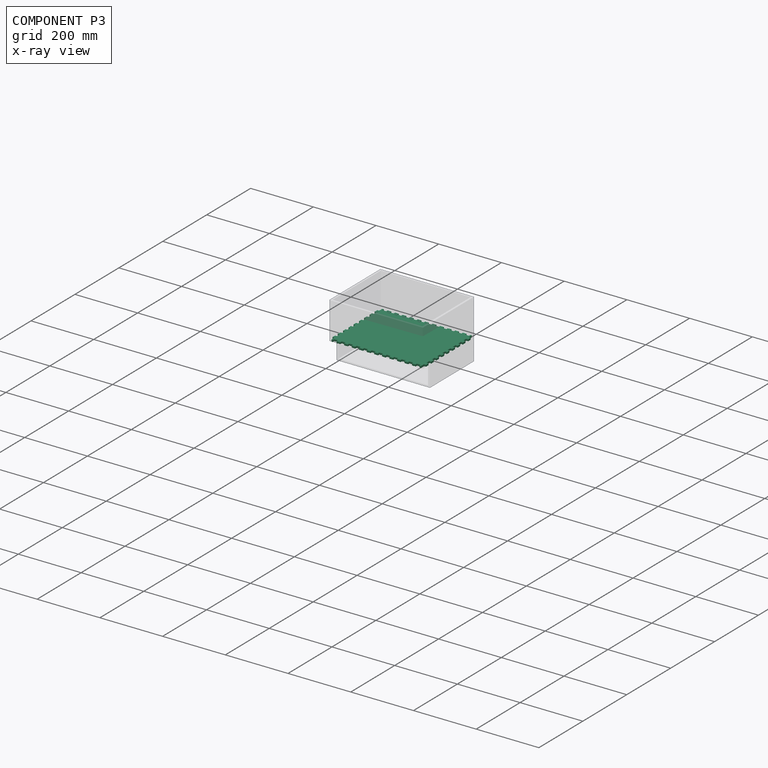
[diagram: component P3 — x-ray view]
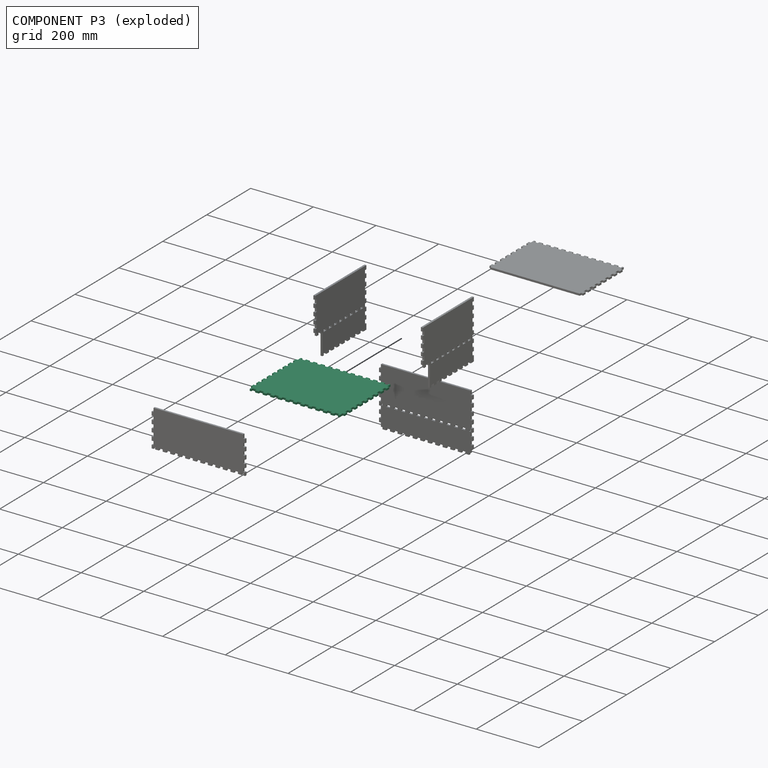
[diagram: component P3 — exploded]
COMPONENT P3 — recipe-attached (CADFS 00861202, mesh-verified: the recipe's output STEP matches this component's geometry to below the mesh-comparison resolution (tessellation chordal tolerance ~0.567 mm)).
Held by: FASTENED mate "Fastened 4" to P2; FASTENED mate "Fastened 1" to P4; FASTENED mate "Fastened 2" to P1; FASTENED mate "Fastened 3" to P5.
Construction recipe (FeatureScript — the CAD program that rebuilds this solid; sketch coordinates are in the units given by the * unit suffixes, e.g. mm):

FeatureScript 1511;
import(path : "onshape/std/geometry.fs", version : "1511.0");
import(path : "onshape/std/common.fs", version : "1511.0");
const mm = millimeter;
const VERTEX = EntityType.VERTEX;
const EDGE = EntityType.EDGE;
const FACE = EntityType.FACE;
const BODY = EntityType.BODY;
function v(x, y){return vector(x, y);}
function OD(order){return orderDisambiguation(order);}
function OSD(set){return originalSetDisambiguation(set);}
function TD(topology){return topologyDisambiguation(topology);}
function TDD(query){return trueDependencyDisambiguation(query);}
function sQuery(a, b, c) {return sketchEntityQuery(a, b, c);}

annotation { "Feature Type Name" : "Feature", "Feature Type Description" : "" }
export const myFeature = defineFeature(function(context is Context, id is Id, definition is map)
    precondition{}
    {
        {
            var Q0;
            Q0=qCreatedBy(makeId("Top.planeOp"),FACE);
            var sketch = newSketch(context, id + "F0", { "sketchPlane" : qUnion([Q0])});
            skLineSegment(sketch, "E0.bottom", {"start": v(143, 110) * mm, "end": v(-143, 110) * mm});
            skLineSegment(sketch, "E0.top", {"start": v(143, -110) * mm, "end": v(-143, -110) * mm});
            skLineSegment(sketch, "E0.left", {"start": v(143, 110) * mm, "end": v(143, -110) * mm});
            skLineSegment(sketch, "E0.right", {"start": v(-143, 110) * mm, "end": v(-143, -110) * mm});
            skPoint(sketch, "E0.middle", {"position": v(0, 0) * mm});
            skSolve(sketch);
        }
        {
            var Q0;
            Q0 = qSketchRegion(id + "F0", true);
            extrude(context, id + "F1", {"entities" : qUnion([Q0]), "depth" : 6.2 * mm, "offsetDistance" : 25 * mm});
        }
        {
            var Q0;
            Q0=makeQuery(id+"F1.opExtrude","CAP_FACE",FACE,{"disambiguationData":[OSD([sQuery(id+"F0.wireOp",EDGE,"E0.bottom"),sQuery(id+"F0.wireOp",EDGE,"E0.top"),sQuery(id+"F0.wireOp",EDGE,"E0.left"),sQuery(id+"F0.wireOp",EDGE,"E0.right")])],"isStart":false});
            var sketch = newSketch(context, id + "F2", { "sketchPlane" : qUnion([Q0])});
            skLineSegment(sketch, "E1", {"start": v(0, 110) * mm, "end": v(0, 116.2) * mm, "construction": true});
            skLineSegment(sketch, "E2.bottom", {"start": v(6, 116.2) * mm, "end": v(-6, 116.2) * mm});
            skLineSegment(sketch, "E2.top", {"start": v(6, 110) * mm, "end": v(-6, 110) * mm});
            skLineSegment(sketch, "E2.left", {"start": v(6, 116.2) * mm, "end": v(6, 110) * mm});
            skLineSegment(sketch, "E2.right", {"start": v(-6, 116.2) * mm, "end": v(-6, 110) * mm});
            skPoint(sketch, "E2.middle", {"position": v(0, 113.1) * mm});
            skLineSegment(sketch, "E3.1.0.0", {"start": v(30, 116.2) * mm, "end": v(18, 116.2) * mm});
            skLineSegment(sketch, "E3.1.0.1", {"start": v(30, 116.2) * mm, "end": v(30, 110) * mm});
            skLineSegment(sketch, "E3.1.0.2", {"start": v(18, 116.2) * mm, "end": v(18, 110) * mm});
            skLineSegment(sketch, "E3.1.0.3", {"start": v(30, 110) * mm, "end": v(18, 110) * mm});
            skLineSegment(sketch, "E3.2.0.0", {"start": v(54, 116.2) * mm, "end": v(42, 116.2) * mm});
            skLineSegment(sketch, "E3.2.0.1", {"start": v(54, 116.2) * mm, "end": v(54, 110) * mm});
            skLineSegment(sketch, "E3.2.0.2", {"start": v(42, 116.2) * mm, "end": v(42, 110) * mm});
            skLineSegment(sketch, "E3.2.0.3", {"start": v(54, 110) * mm, "end": v(42, 110) * mm});
            skLineSegment(sketch, "E3.3.0.0", {"start": v(78, 116.2) * mm, "end": v(66, 116.2) * mm});
            skLineSegment(sketch, "E3.3.0.1", {"start": v(78, 116.2) * mm, "end": v(78, 110) * mm});
            skLineSegment(sketch, "E3.3.0.2", {"start": v(66, 116.2) * mm, "end": v(66, 110) * mm});
            skLineSegment(sketch, "E3.3.0.3", {"start": v(78, 110) * mm, "end": v(66, 110) * mm});
            skLineSegment(sketch, "E3.4.0.0", {"start": v(102, 116.2) * mm, "end": v(90, 116.2) * mm});
            skLineSegment(sketch, "E3.4.0.1", {"start": v(102, 116.2) * mm, "end": v(102, 110) * mm});
            skLineSegment(sketch, "E3.4.0.2", {"start": v(90, 116.2) * mm, "end": v(90, 110) * mm});
            skLineSegment(sketch, "E3.4.0.3", {"start": v(102, 110) * mm, "end": v(90, 110) * mm});
            skLineSegment(sketch, "E3.5.0.0", {"start": v(126, 116.2) * mm, "end": v(114, 116.2) * mm});
            skLineSegment(sketch, "E3.5.0.1", {"start": v(126, 116.2) * mm, "end": v(126, 110) * mm});
            skLineSegment(sketch, "E3.5.0.2", {"start": v(114, 116.2) * mm, "end": v(114, 110) * mm});
            skLineSegment(sketch, "E3.5.0.3", {"start": v(126, 110) * mm, "end": v(114, 110) * mm});
            skLineSegment(sketch, "E3.6.0.0", {"start": v(143, 116.2) * mm, "end": v(138, 116.2) * mm});
            skLineSegment(sketch, "E3.6.0.2", {"start": v(138, 116.2) * mm, "end": v(138, 110) * mm});
            skLineSegment(sketch, "E3.6.0.3", {"start": v(143, 110) * mm, "end": v(138, 110) * mm});
            skLineSegment(sketch, "E3.direction1", {"start": v(-6, 116.2) * mm, "end": v(18, 116.2) * mm, "construction": true});
            skLineSegment(sketch, "E4", {"start": v(143, 110) * mm, "end": v(143, 116.2) * mm});
            skPoint(sketch, "E5.orphan", {"position": v(150, 110) * mm});
            skLineSegment(sketch, "E6.MirrorCS", {"start": v(-102, 110) * mm, "end": v(-90, 110) * mm});
            skLineSegment(sketch, "E7.MirrorCS", {"start": v(-143, 116.2) * mm, "end": v(-138, 116.2) * mm});
            skLineSegment(sketch, "E8.MirrorCS", {"start": v(-138, 116.2) * mm, "end": v(-138, 110) * mm});
            skLineSegment(sketch, "E9.MirrorCS", {"start": v(-30, 116.2) * mm, "end": v(-30, 110) * mm});
            skLineSegment(sketch, "E10.MirrorCS", {"start": v(-66, 116.2) * mm, "end": v(-66, 110) * mm});
            skLineSegment(sketch, "E11.MirrorCS", {"start": v(-126, 116.2) * mm, "end": v(-126, 110) * mm});
            skLineSegment(sketch, "E12.MirrorCS", {"start": v(-54, 110) * mm, "end": v(-42, 110) * mm});
            skLineSegment(sketch, "E13.MirrorCS", {"start": v(-143, 110) * mm, "end": v(-143, 116.2) * mm});
            skLineSegment(sketch, "E14.MirrorCS", {"start": v(-54, 116.2) * mm, "end": v(-54, 110) * mm});
            skLineSegment(sketch, "E15.MirrorCS", {"start": v(-114, 116.2) * mm, "end": v(-114, 110) * mm});
            skLineSegment(sketch, "E16.MirrorCS", {"start": v(-102, 116.2) * mm, "end": v(-90, 116.2) * mm});
            skLineSegment(sketch, "E17.MirrorCS", {"start": v(-102, 116.2) * mm, "end": v(-102, 110) * mm});
            skLineSegment(sketch, "E18.MirrorCS", {"start": v(-42, 116.2) * mm, "end": v(-42, 110) * mm});
            skLineSegment(sketch, "E19.MirrorCS", {"start": v(-54, 116.2) * mm, "end": v(-42, 116.2) * mm});
            skLineSegment(sketch, "E20.MirrorCS", {"start": v(-143, 110) * mm, "end": v(-138, 110) * mm});
            skLineSegment(sketch, "E21.MirrorCS", {"start": v(-90, 116.2) * mm, "end": v(-90, 110) * mm});
            skLineSegment(sketch, "E22.MirrorCS", {"start": v(-78, 116.2) * mm, "end": v(-78, 110) * mm});
            skLineSegment(sketch, "E23.MirrorCS", {"start": v(-78, 110) * mm, "end": v(-66, 110) * mm});
            skLineSegment(sketch, "E24.MirrorCS", {"start": v(-126, 116.2) * mm, "end": v(-114, 116.2) * mm});
            skLineSegment(sketch, "E25.MirrorCS", {"start": v(-78, 116.2) * mm, "end": v(-66, 116.2) * mm});
            skLineSegment(sketch, "E26.MirrorCS", {"start": v(-126, 110) * mm, "end": v(-114, 110) * mm});
            skLineSegment(sketch, "E27.MirrorCS", {"start": v(-30, 110) * mm, "end": v(-18, 110) * mm});
            skPoint(sketch, "E28.MirrorP", {"position": v(-150, 110) * mm});
            skLineSegment(sketch, "E29.MirrorCS", {"start": v(-30, 116.2) * mm, "end": v(-18, 116.2) * mm});
            skLineSegment(sketch, "E30.MirrorCS", {"start": v(-18, 116.2) * mm, "end": v(-18, 110) * mm});
            skLineSegment(sketch, "E31.MirrorCS", {"start": v(6, -116.2) * mm, "end": v(-6, -116.2) * mm});
            skLineSegment(sketch, "E32.MirrorCS", {"start": v(-143, -116.2) * mm, "end": v(-138, -116.2) * mm});
            skLineSegment(sketch, "E33.MirrorCS", {"start": v(143, -110) * mm, "end": v(138, -110) * mm});
            skLineSegment(sketch, "E34.MirrorCS", {"start": v(-30, -116.2) * mm, "end": v(-30, -110) * mm});
            skLineSegment(sketch, "E35.MirrorCS", {"start": v(-143, -110) * mm, "end": v(-143, -116.2) * mm});
            skLineSegment(sketch, "E36.MirrorCS", {"start": v(-6, -116.2) * mm, "end": v(18, -116.2) * mm, "construction": true});
            skLineSegment(sketch, "E37.MirrorCS", {"start": v(-42, -116.2) * mm, "end": v(-42, -110) * mm});
            skLineSegment(sketch, "E38.MirrorCS", {"start": v(143, -110) * mm, "end": v(143, -116.2) * mm});
            skLineSegment(sketch, "E39.MirrorCS", {"start": v(-143, -110) * mm, "end": v(-138, -110) * mm});
            skLineSegment(sketch, "E40.MirrorCS", {"start": v(18, -116.2) * mm, "end": v(18, -110) * mm});
            skLineSegment(sketch, "E41.MirrorCS", {"start": v(-138, -116.2) * mm, "end": v(-138, -110) * mm});
            skLineSegment(sketch, "E42.MirrorCS", {"start": v(0, -110) * mm, "end": v(0, -116.2) * mm, "construction": true});
            skLineSegment(sketch, "E43.MirrorCS", {"start": v(-6, -116.2) * mm, "end": v(-6, -110) * mm});
            skLineSegment(sketch, "E44.MirrorCS", {"start": v(-54, -116.2) * mm, "end": v(-42, -116.2) * mm});
            skLineSegment(sketch, "E45.MirrorCS", {"start": v(6, -116.2) * mm, "end": v(6, -110) * mm});
            skLineSegment(sketch, "E46.MirrorCS", {"start": v(138, -116.2) * mm, "end": v(138, -110) * mm});
            skLineSegment(sketch, "E47.MirrorCS", {"start": v(6, -110) * mm, "end": v(-6, -110) * mm});
            skLineSegment(sketch, "E48.MirrorCS", {"start": v(143, -116.2) * mm, "end": v(138, -116.2) * mm});
            skLineSegment(sketch, "E49.MirrorCS", {"start": v(-30, -116.2) * mm, "end": v(-18, -116.2) * mm});
            skLineSegment(sketch, "E50.MirrorCS", {"start": v(-126, -116.2) * mm, "end": v(-126, -110) * mm});
            skLineSegment(sketch, "E51.MirrorCS", {"start": v(-102, -116.2) * mm, "end": v(-90, -116.2) * mm});
            skLineSegment(sketch, "E52.MirrorCS", {"start": v(126, -116.2) * mm, "end": v(114, -116.2) * mm});
            skLineSegment(sketch, "E53.MirrorCS", {"start": v(102, -116.2) * mm, "end": v(90, -116.2) * mm});
            skLineSegment(sketch, "E54.MirrorCS", {"start": v(126, -116.2) * mm, "end": v(126, -110) * mm});
            skLineSegment(sketch, "E55.MirrorCS", {"start": v(126, -110) * mm, "end": v(114, -110) * mm});
            skLineSegment(sketch, "E56.MirrorCS", {"start": v(78, -116.2) * mm, "end": v(66, -116.2) * mm});
            skLineSegment(sketch, "E57.MirrorCS", {"start": v(30, -110) * mm, "end": v(18, -110) * mm});
            skLineSegment(sketch, "E58.MirrorCS", {"start": v(-126, -116.2) * mm, "end": v(-114, -116.2) * mm});
            skLineSegment(sketch, "E59.MirrorCS", {"start": v(-18, -116.2) * mm, "end": v(-18, -110) * mm});
            skLineSegment(sketch, "E60.MirrorCS", {"start": v(54, -116.2) * mm, "end": v(42, -116.2) * mm});
            skLineSegment(sketch, "E61.MirrorCS", {"start": v(30, -116.2) * mm, "end": v(18, -116.2) * mm});
            skLineSegment(sketch, "E62.MirrorCS", {"start": v(54, -116.2) * mm, "end": v(54, -110) * mm});
            skLineSegment(sketch, "E63.MirrorCS", {"start": v(54, -110) * mm, "end": v(42, -110) * mm});
            skLineSegment(sketch, "E64.MirrorCS", {"start": v(-78, -116.2) * mm, "end": v(-66, -116.2) * mm});
            skLineSegment(sketch, "E65.MirrorCS", {"start": v(-30, -110) * mm, "end": v(-18, -110) * mm});
            skLineSegment(sketch, "E66.MirrorCS", {"start": v(-102, -110) * mm, "end": v(-90, -110) * mm});
            skLineSegment(sketch, "E67.MirrorCS", {"start": v(-102, -116.2) * mm, "end": v(-102, -110) * mm});
            skLineSegment(sketch, "E68.MirrorCS", {"start": v(90, -116.2) * mm, "end": v(90, -110) * mm});
            skLineSegment(sketch, "E69.MirrorCS", {"start": v(78, -110) * mm, "end": v(66, -110) * mm});
            skLineSegment(sketch, "E70.MirrorCS", {"start": v(78, -116.2) * mm, "end": v(78, -110) * mm});
            skLineSegment(sketch, "E71.MirrorCS", {"start": v(66, -116.2) * mm, "end": v(66, -110) * mm});
            skLineSegment(sketch, "E72.MirrorCS", {"start": v(102, -110) * mm, "end": v(90, -110) * mm});
            skLineSegment(sketch, "E73.MirrorCS", {"start": v(-114, -116.2) * mm, "end": v(-114, -110) * mm});
            skLineSegment(sketch, "E74.MirrorCS", {"start": v(-126, -110) * mm, "end": v(-114, -110) * mm});
            skLineSegment(sketch, "E75.MirrorCS", {"start": v(-90, -116.2) * mm, "end": v(-90, -110) * mm});
            skLineSegment(sketch, "E76.MirrorCS", {"start": v(-78, -110) * mm, "end": v(-66, -110) * mm});
            skLineSegment(sketch, "E77.MirrorCS", {"start": v(-54, -110) * mm, "end": v(-42, -110) * mm});
            skLineSegment(sketch, "E78.MirrorCS", {"start": v(114, -116.2) * mm, "end": v(114, -110) * mm});
            skLineSegment(sketch, "E79.MirrorCS", {"start": v(-54, -116.2) * mm, "end": v(-54, -110) * mm});
            skLineSegment(sketch, "E80.MirrorCS", {"start": v(-78, -116.2) * mm, "end": v(-78, -110) * mm});
            skLineSegment(sketch, "E81.MirrorCS", {"start": v(42, -116.2) * mm, "end": v(42, -110) * mm});
            skLineSegment(sketch, "E82.MirrorCS", {"start": v(102, -116.2) * mm, "end": v(102, -110) * mm});
            skLineSegment(sketch, "E83.MirrorCS", {"start": v(-66, -116.2) * mm, "end": v(-66, -110) * mm});
            skLineSegment(sketch, "E84.MirrorCS", {"start": v(30, -116.2) * mm, "end": v(30, -110) * mm});
            skPoint(sketch, "E85.MirrorP", {"position": v(-150, -110) * mm});
            skPoint(sketch, "E86.MirrorP", {"position": v(0, -113.1) * mm});
            skPoint(sketch, "E87.MirrorP", {"position": v(150, -110) * mm});
            skSolve(sketch);
        }
        {
            var Q0;
            Q0=makeQuery(id+"F2.imprint","IMPRINT",FACE,{"disambiguationData":[TD([[makeQuery(id+"F2.imprint","IMPRINT",EDGE,{"derivedFrom":sQuery(id+"F2.wireOp",EDGE,"E3.6.0.0")}),1.0]])]});
            var Q1;
            Q1=makeQuery(id+"F2.imprint","IMPRINT",FACE,{"disambiguationData":[TD([[makeQuery(id+"F2.imprint","IMPRINT",EDGE,{"derivedFrom":sQuery(id+"F2.wireOp",EDGE,"E3.5.0.0")}),1.0]])]});
            var Q2;
            Q2=makeQuery(id+"F2.imprint","IMPRINT",FACE,{"disambiguationData":[TD([[makeQuery(id+"F2.imprint","IMPRINT",EDGE,{"derivedFrom":sQuery(id+"F2.wireOp",EDGE,"E3.4.0.0")}),1.0]])]});
            var Q3;
            Q3=makeQuery(id+"F2.imprint","IMPRINT",FACE,{"disambiguationData":[TD([[makeQuery(id+"F2.imprint","IMPRINT",EDGE,{"derivedFrom":sQuery(id+"F2.wireOp",EDGE,"E3.3.0.0")}),1.0]])]});
            var Q4;
            Q4=makeQuery(id+"F2.imprint","IMPRINT",FACE,{"disambiguationData":[TD([[makeQuery(id+"F2.imprint","IMPRINT",EDGE,{"derivedFrom":sQuery(id+"F2.wireOp",EDGE,"E3.2.0.0")}),1.0]])]});
            var Q5;
            Q5=makeQuery(id+"F2.imprint","IMPRINT",FACE,{"disambiguationData":[TD([[makeQuery(id+"F2.imprint","IMPRINT",EDGE,{"derivedFrom":sQuery(id+"F2.wireOp",EDGE,"E3.1.0.0")}),1.0]])]});
            var Q6;
            Q6=makeQuery(id+"F2.imprint","IMPRINT",FACE,{"disambiguationData":[TD([[makeQuery(id+"F2.imprint","IMPRINT",EDGE,{"derivedFrom":sQuery(id+"F2.wireOp",EDGE,"E2.bottom")}),1.0]])]});
            var Q7;
            Q7=makeQuery(id+"F2.imprint","IMPRINT",FACE,{"disambiguationData":[TD([[makeQuery(id+"F2.imprint","IMPRINT",EDGE,{"derivedFrom":sQuery(id+"F2.wireOp",EDGE,"E9.MirrorCS")}),1.0]])]});
            var Q8;
            Q8=makeQuery(id+"F2.imprint","IMPRINT",FACE,{"disambiguationData":[TD([[makeQuery(id+"F2.imprint","IMPRINT",EDGE,{"derivedFrom":sQuery(id+"F2.wireOp",EDGE,"E12.MirrorCS")}),-1.0]])]});
            var Q9;
            Q9=makeQuery(id+"F2.imprint","IMPRINT",FACE,{"disambiguationData":[TD([[makeQuery(id+"F2.imprint","IMPRINT",EDGE,{"derivedFrom":sQuery(id+"F2.wireOp",EDGE,"E10.MirrorCS")}),-1.0]])]});
            var Q10;
            Q10=makeQuery(id+"F2.imprint","IMPRINT",FACE,{"disambiguationData":[TD([[makeQuery(id+"F2.imprint","IMPRINT",EDGE,{"derivedFrom":sQuery(id+"F2.wireOp",EDGE,"E6.MirrorCS")}),-1.0]])]});
            var Q11;
            Q11=makeQuery(id+"F2.imprint","IMPRINT",FACE,{"disambiguationData":[TD([[makeQuery(id+"F2.imprint","IMPRINT",EDGE,{"derivedFrom":sQuery(id+"F2.wireOp",EDGE,"E11.MirrorCS")}),1.0]])]});
            var Q12;
            Q12=makeQuery(id+"F2.imprint","IMPRINT",FACE,{"disambiguationData":[TD([[makeQuery(id+"F2.imprint","IMPRINT",EDGE,{"derivedFrom":sQuery(id+"F2.wireOp",EDGE,"E7.MirrorCS")}),-1.0]])]});
            var Q13;
            Q13=makeQuery(id+"F2.imprint","IMPRINT",FACE,{"disambiguationData":[TD([[makeQuery(id+"F2.imprint","IMPRINT",EDGE,{"derivedFrom":sQuery(id+"F2.wireOp",EDGE,"E32.MirrorCS")}),1.0]])]});
            var Q14;
            Q14=makeQuery(id+"F2.imprint","IMPRINT",FACE,{"disambiguationData":[TD([[makeQuery(id+"F2.imprint","IMPRINT",EDGE,{"derivedFrom":sQuery(id+"F2.wireOp",EDGE,"E50.MirrorCS")}),-1.0]])]});
            var Q15;
            Q15=makeQuery(id+"F2.imprint","IMPRINT",FACE,{"disambiguationData":[TD([[makeQuery(id+"F2.imprint","IMPRINT",EDGE,{"derivedFrom":sQuery(id+"F2.wireOp",EDGE,"E51.MirrorCS")}),1.0]])]});
            var Q16;
            Q16=makeQuery(id+"F2.imprint","IMPRINT",FACE,{"disambiguationData":[TD([[makeQuery(id+"F2.imprint","IMPRINT",EDGE,{"derivedFrom":sQuery(id+"F2.wireOp",EDGE,"E64.MirrorCS")}),1.0]])]});
            var Q17;
            Q17=makeQuery(id+"F2.imprint","IMPRINT",FACE,{"disambiguationData":[TD([[makeQuery(id+"F2.imprint","IMPRINT",EDGE,{"derivedFrom":sQuery(id+"F2.wireOp",EDGE,"E37.MirrorCS")}),1.0]])]});
            var Q18;
            Q18=makeQuery(id+"F2.imprint","IMPRINT",FACE,{"disambiguationData":[TD([[makeQuery(id+"F2.imprint","IMPRINT",EDGE,{"derivedFrom":sQuery(id+"F2.wireOp",EDGE,"E34.MirrorCS")}),-1.0]])]});
            var Q19;
            Q19=makeQuery(id+"F2.imprint","IMPRINT",FACE,{"disambiguationData":[TD([[makeQuery(id+"F2.imprint","IMPRINT",EDGE,{"derivedFrom":sQuery(id+"F2.wireOp",EDGE,"E31.MirrorCS")}),-1.0]])]});
            var Q20;
            Q20=makeQuery(id+"F2.imprint","IMPRINT",FACE,{"disambiguationData":[TD([[makeQuery(id+"F2.imprint","IMPRINT",EDGE,{"derivedFrom":sQuery(id+"F2.wireOp",EDGE,"E40.MirrorCS")}),-1.0]])]});
            var Q21;
            Q21=makeQuery(id+"F2.imprint","IMPRINT",FACE,{"disambiguationData":[TD([[makeQuery(id+"F2.imprint","IMPRINT",EDGE,{"derivedFrom":sQuery(id+"F2.wireOp",EDGE,"E60.MirrorCS")}),-1.0]])]});
            var Q22;
            Q22=makeQuery(id+"F2.imprint","IMPRINT",FACE,{"disambiguationData":[TD([[makeQuery(id+"F2.imprint","IMPRINT",EDGE,{"derivedFrom":sQuery(id+"F2.wireOp",EDGE,"E56.MirrorCS")}),-1.0]])]});
            var Q23;
            Q23=makeQuery(id+"F2.imprint","IMPRINT",FACE,{"disambiguationData":[TD([[makeQuery(id+"F2.imprint","IMPRINT",EDGE,{"derivedFrom":sQuery(id+"F2.wireOp",EDGE,"E53.MirrorCS")}),-1.0]])]});
            var Q24;
            Q24=makeQuery(id+"F2.imprint","IMPRINT",FACE,{"disambiguationData":[TD([[makeQuery(id+"F2.imprint","IMPRINT",EDGE,{"derivedFrom":sQuery(id+"F2.wireOp",EDGE,"E52.MirrorCS")}),-1.0]])]});
            var Q25;
            Q25=makeQuery(id+"F2.imprint","IMPRINT",FACE,{"disambiguationData":[TD([[makeQuery(id+"F2.imprint","IMPRINT",EDGE,{"derivedFrom":sQuery(id+"F2.wireOp",EDGE,"E33.MirrorCS")}),1.0]])]});
            var Q26;
            Q26=makeQuery(id+"F1.opExtrude","CAP_FACE",FACE,{"disambiguationData":[OSD([sQuery(id+"F0.wireOp",EDGE,"E0.bottom"),sQuery(id+"F0.wireOp",EDGE,"E0.top"),sQuery(id+"F0.wireOp",EDGE,"E0.left"),sQuery(id+"F0.wireOp",EDGE,"E0.right")])],"isStart":true});
            extrude(context, id + "F3", {"entities" : qUnion([Q0, Q1, Q2, Q3, Q4, Q5, Q6, Q7, Q8, Q9, Q10, Q11, Q12, Q13, Q14, Q15, Q16, Q17, Q18, Q19, Q20, Q21, Q22, Q23, Q24, Q25]), "operationType" : NewBodyOperationType.ADD, "endBound" : BoundingType.UP_TO_SURFACE, "oppositeDirection" : true, "depth" : 25 * mm, "endBoundEntityFace" : qUnion([Q26]), "offsetDistance" : 25 * mm});
        }
        {
            var Q0;
            Q0=makeQuery(id+"F3.boolean.opBoolean","MERGE",FACE,{"derivedFrom":[makeQuery(id+"F1.opExtrude","CAP_FACE",FACE,{"disambiguationData":[OSD([sQuery(id+"F0.wireOp",EDGE,"E0.bottom"),sQuery(id+"F0.wireOp",EDGE,"E0.top"),sQuery(id+"F0.wireOp",EDGE,"E0.left"),sQuery(id+"F0.wireOp",EDGE,"E0.right")])],"isStart":false}),makeQuery(id+"F3.opExtrude","CAP_FACE",FACE,{"disambiguationData":[OSD([sQuery(id+"F2.wireOp",EDGE,"E2.bottom"),sQuery(id+"F2.wireOp",EDGE,"E2.top"),sQuery(id+"F2.wireOp",EDGE,"E2.left"),sQuery(id+"F2.wireOp",EDGE,"E2.right")])],"isStart":true}),makeQuery(id+"F3.opExtrude","CAP_FACE",FACE,{"disambiguationData":[OSD([sQuery(id+"F2.wireOp",EDGE,"E3.1.0.0"),sQuery(id+"F2.wireOp",EDGE,"E3.1.0.1"),sQuery(id+"F2.wireOp",EDGE,"E3.1.0.2"),sQuery(id+"F2.wireOp",EDGE,"E3.1.0.3")])],"isStart":true}),makeQuery(id+"F3.opExtrude","CAP_FACE",FACE,{"disambiguationData":[OSD([sQuery(id+"F2.wireOp",EDGE,"E3.2.0.0"),sQuery(id+"F2.wireOp",EDGE,"E3.2.0.1"),sQuery(id+"F2.wireOp",EDGE,"E3.2.0.2"),sQuery(id+"F2.wireOp",EDGE,"E3.2.0.3")])],"isStart":true}),makeQuery(id+"F3.opExtrude","CAP_FACE",FACE,{"disambiguationData":[OSD([sQuery(id+"F2.wireOp",EDGE,"E3.3.0.0"),sQuery(id+"F2.wireOp",EDGE,"E3.3.0.1"),sQuery(id+"F2.wireOp",EDGE,"E3.3.0.2"),sQuery(id+"F2.wireOp",EDGE,"E3.3.0.3")])],"isStart":true}),makeQuery(id+"F3.opExtrude","CAP_FACE",FACE,{"disambiguationData":[OSD([sQuery(id+"F2.wireOp",EDGE,"E3.4.0.0"),sQuery(id+"F2.wireOp",EDGE,"E3.4.0.1"),sQuery(id+"F2.wireOp",EDGE,"E3.4.0.2"),sQuery(id+"F2.wireOp",EDGE,"E3.4.0.3")])],"isStart":true}),makeQuery(id+"F3.opExtrude","CAP_FACE",FACE,{"disambiguationData":[OSD([sQuery(id+"F2.wireOp",EDGE,"E3.5.0.0"),sQuery(id+"F2.wireOp",EDGE,"E3.5.0.1"),sQuery(id+"F2.wireOp",EDGE,"E3.5.0.2"),sQuery(id+"F2.wireOp",EDGE,"E3.5.0.3")])],"isStart":true}),makeQuery(id+"F3.opExtrude","CAP_FACE",FACE,{"disambiguationData":[OSD([sQuery(id+"F2.wireOp",EDGE,"E3.6.0.0"),sQuery(id+"F2.wireOp",EDGE,"E3.6.0.2"),sQuery(id+"F2.wireOp",EDGE,"E3.6.0.3"),sQuery(id+"F2.wireOp",EDGE,"E4")])],"isStart":true}),makeQuery(id+"F3.opExtrude","CAP_FACE",FACE,{"disambiguationData":[OSD([sQuery(id+"F2.wireOp",EDGE,"E6.MirrorCS"),sQuery(id+"F2.wireOp",EDGE,"E16.MirrorCS"),sQuery(id+"F2.wireOp",EDGE,"E17.MirrorCS"),sQuery(id+"F2.wireOp",EDGE,"E21.MirrorCS")])],"isStart":true}),makeQuery(id+"F3.opExtrude","CAP_FACE",FACE,{"disambiguationData":[OSD([sQuery(id+"F2.wireOp",EDGE,"E7.MirrorCS"),sQuery(id+"F2.wireOp",EDGE,"E8.MirrorCS"),sQuery(id+"F2.wireOp",EDGE,"E13.MirrorCS"),sQuery(id+"F2.wireOp",EDGE,"E20.MirrorCS")])],"isStart":true}),makeQuery(id+"F3.opExtrude","CAP_FACE",FACE,{"disambiguationData":[OSD([sQuery(id+"F2.wireOp",EDGE,"E9.MirrorCS"),sQuery(id+"F2.wireOp",EDGE,"E27.MirrorCS"),sQuery(id+"F2.wireOp",EDGE,"E29.MirrorCS"),sQuery(id+"F2.wireOp",EDGE,"E30.MirrorCS")])],"isStart":true}),makeQuery(id+"F3.opExtrude","CAP_FACE",FACE,{"disambiguationData":[OSD([sQuery(id+"F2.wireOp",EDGE,"E10.MirrorCS"),sQuery(id+"F2.wireOp",EDGE,"E22.MirrorCS"),sQuery(id+"F2.wireOp",EDGE,"E23.MirrorCS"),sQuery(id+"F2.wireOp",EDGE,"E25.MirrorCS")])],"isStart":true}),makeQuery(id+"F3.opExtrude","CAP_FACE",FACE,{"disambiguationData":[OSD([sQuery(id+"F2.wireOp",EDGE,"E11.MirrorCS"),sQuery(id+"F2.wireOp",EDGE,"E15.MirrorCS"),sQuery(id+"F2.wireOp",EDGE,"E24.MirrorCS"),sQuery(id+"F2.wireOp",EDGE,"E26.MirrorCS")])],"isStart":true}),makeQuery(id+"F3.opExtrude","CAP_FACE",FACE,{"disambiguationData":[OSD([sQuery(id+"F2.wireOp",EDGE,"E12.MirrorCS"),sQuery(id+"F2.wireOp",EDGE,"E14.MirrorCS"),sQuery(id+"F2.wireOp",EDGE,"E18.MirrorCS"),sQuery(id+"F2.wireOp",EDGE,"E19.MirrorCS")])],"isStart":true})]});
            var sketch = newSketch(context, id + "F4", { "sketchPlane" : qUnion([Q0])});
            skLineSegment(sketch, "E88", {"start": v(-138, 110) * mm, "end": v(143, 110) * mm, "construction": true});
            skLineSegment(sketch, "E89", {"start": v(0, 0) * mm, "end": v(143, 0) * mm, "construction": true});
            skLineSegment(sketch, "E90", {"start": v(143, 0) * mm, "end": v(149.2, 0) * mm, "construction": true});
            skLineSegment(sketch, "E91.bottom", {"start": v(149.2, 6) * mm, "end": v(143, 6) * mm});
            skLineSegment(sketch, "E91.top", {"start": v(149.2, -6) * mm, "end": v(143, -6) * mm});
            skLineSegment(sketch, "E91.left", {"start": v(149.2, 6) * mm, "end": v(149.2, -6) * mm});
            skLineSegment(sketch, "E91.right", {"start": v(143, 6) * mm, "end": v(143, -6) * mm});
            skPoint(sketch, "E91.middle", {"position": v(146.1, 0) * mm});
            skLineSegment(sketch, "E92.0.1.0", {"start": v(149.2, 30) * mm, "end": v(143, 30) * mm});
            skLineSegment(sketch, "E92.0.1.1", {"start": v(143, 30) * mm, "end": v(143, 18) * mm});
            skLineSegment(sketch, "E92.0.1.2", {"start": v(149.2, 30) * mm, "end": v(149.2, 18) * mm});
            skLineSegment(sketch, "E92.0.1.3", {"start": v(149.2, 18) * mm, "end": v(143, 18) * mm});
            skLineSegment(sketch, "E92.0.2.0", {"start": v(149.2, 54) * mm, "end": v(143, 54) * mm});
            skLineSegment(sketch, "E92.0.2.1", {"start": v(143, 54) * mm, "end": v(143, 42) * mm});
            skLineSegment(sketch, "E92.0.2.2", {"start": v(149.2, 54) * mm, "end": v(149.2, 42) * mm});
            skLineSegment(sketch, "E92.0.2.3", {"start": v(149.2, 42) * mm, "end": v(143, 42) * mm});
            skLineSegment(sketch, "E92.0.3.0", {"start": v(149.2, 78) * mm, "end": v(143, 78) * mm});
            skLineSegment(sketch, "E92.0.3.1", {"start": v(143, 78) * mm, "end": v(143, 66) * mm});
            skLineSegment(sketch, "E92.0.3.2", {"start": v(149.2, 78) * mm, "end": v(149.2, 66) * mm});
            skLineSegment(sketch, "E92.0.3.3", {"start": v(149.2, 66) * mm, "end": v(143, 66) * mm});
            skLineSegment(sketch, "E92.0.4.0", {"start": v(149.2, 102) * mm, "end": v(143, 102) * mm});
            skLineSegment(sketch, "E92.0.4.1", {"start": v(143, 102) * mm, "end": v(143, 90) * mm});
            skLineSegment(sketch, "E92.0.4.2", {"start": v(149.2, 102) * mm, "end": v(149.2, 90) * mm});
            skLineSegment(sketch, "E92.0.4.3", {"start": v(149.2, 90) * mm, "end": v(143, 90) * mm});
            skLineSegment(sketch, "E92.direction1", {"start": v(143, 6) * mm, "end": v(168, 6) * mm, "construction": true});
            skLineSegment(sketch, "E92.direction2", {"start": v(143, 6) * mm, "end": v(143, 30) * mm, "construction": true});
            skLineSegment(sketch, "E93.MirrorCS", {"start": v(143, -30) * mm, "end": v(143, -18) * mm});
            skLineSegment(sketch, "E94.MirrorCS", {"start": v(149.2, -78) * mm, "end": v(149.2, -66) * mm});
            skLineSegment(sketch, "E95.MirrorCS", {"start": v(149.2, -66) * mm, "end": v(143, -66) * mm});
            skLineSegment(sketch, "E96.MirrorCS", {"start": v(149.2, -102) * mm, "end": v(143, -102) * mm});
            skLineSegment(sketch, "E97.MirrorCS", {"start": v(143, -102) * mm, "end": v(143, -90) * mm});
            skLineSegment(sketch, "E98.MirrorCS", {"start": v(149.2, -102) * mm, "end": v(149.2, -90) * mm});
            skLineSegment(sketch, "E99.MirrorCS", {"start": v(149.2, -90) * mm, "end": v(143, -90) * mm});
            skLineSegment(sketch, "E100.MirrorCS", {"start": v(143, -6) * mm, "end": v(143, -30) * mm, "construction": true});
            skLineSegment(sketch, "E101.MirrorCS", {"start": v(143, -54) * mm, "end": v(143, -42) * mm});
            skLineSegment(sketch, "E102.MirrorCS", {"start": v(149.2, -42) * mm, "end": v(143, -42) * mm});
            skLineSegment(sketch, "E103.MirrorCS", {"start": v(149.2, -54) * mm, "end": v(143, -54) * mm});
            skLineSegment(sketch, "E104.MirrorCS", {"start": v(149.2, -54) * mm, "end": v(149.2, -42) * mm});
            skLineSegment(sketch, "E105.MirrorCS", {"start": v(149.2, -18) * mm, "end": v(143, -18) * mm});
            skLineSegment(sketch, "E106.MirrorCS", {"start": v(143, -78) * mm, "end": v(143, -66) * mm});
            skLineSegment(sketch, "E107.MirrorCS", {"start": v(149.2, -78) * mm, "end": v(143, -78) * mm});
            skLineSegment(sketch, "E108.MirrorCS", {"start": v(149.2, -30) * mm, "end": v(143, -30) * mm});
            skLineSegment(sketch, "E109.MirrorCS", {"start": v(149.2, -30) * mm, "end": v(149.2, -18) * mm});
            skLineSegment(sketch, "E110.MirrorCS", {"start": v(-143, 6) * mm, "end": v(-143, -6) * mm});
            skLineSegment(sketch, "E111.MirrorCS", {"start": v(-149.2, 6) * mm, "end": v(-149.2, -6) * mm});
            skLineSegment(sketch, "E112.MirrorCS", {"start": v(-149.2, -6) * mm, "end": v(-143, -6) * mm});
            skLineSegment(sketch, "E113.MirrorCS", {"start": v(-149.2, 6) * mm, "end": v(-143, 6) * mm});
            skLineSegment(sketch, "E114.MirrorCS", {"start": v(-143, 0) * mm, "end": v(-149.2, 0) * mm, "construction": true});
            skLineSegment(sketch, "E115.MirrorCS", {"start": v(-143, 30) * mm, "end": v(-143, 18) * mm});
            skLineSegment(sketch, "E116.MirrorCS", {"start": v(-149.2, -30) * mm, "end": v(-143, -30) * mm});
            skLineSegment(sketch, "E117.MirrorCS", {"start": v(-143, -30) * mm, "end": v(-143, -18) * mm});
            skLineSegment(sketch, "E118.MirrorCS", {"start": v(-149.2, 30) * mm, "end": v(-143, 30) * mm});
            skLineSegment(sketch, "E119.MirrorCS", {"start": v(-149.2, 78) * mm, "end": v(-149.2, 66) * mm});
            skLineSegment(sketch, "E120.MirrorCS", {"start": v(-143, -54) * mm, "end": v(-143, -42) * mm});
            skLineSegment(sketch, "E121.MirrorCS", {"start": v(-149.2, 66) * mm, "end": v(-143, 66) * mm});
            skLineSegment(sketch, "E122.MirrorCS", {"start": v(-149.2, -42) * mm, "end": v(-143, -42) * mm});
            skLineSegment(sketch, "E123.MirrorCS", {"start": v(-149.2, 102) * mm, "end": v(-143, 102) * mm});
            skLineSegment(sketch, "E124.MirrorCS", {"start": v(-149.2, -54) * mm, "end": v(-143, -54) * mm});
            skLineSegment(sketch, "E125.MirrorCS", {"start": v(-149.2, -90) * mm, "end": v(-143, -90) * mm});
            skLineSegment(sketch, "E126.MirrorCS", {"start": v(-143, 102) * mm, "end": v(-143, 90) * mm});
            skLineSegment(sketch, "E127.MirrorCS", {"start": v(-149.2, -54) * mm, "end": v(-149.2, -42) * mm});
            skLineSegment(sketch, "E128.MirrorCS", {"start": v(-143, -102) * mm, "end": v(-143, -90) * mm});
            skLineSegment(sketch, "E129.MirrorCS", {"start": v(-149.2, 102) * mm, "end": v(-149.2, 90) * mm});
            skLineSegment(sketch, "E130.MirrorCS", {"start": v(-149.2, -18) * mm, "end": v(-143, -18) * mm});
            skLineSegment(sketch, "E131.MirrorCS", {"start": v(-149.2, -102) * mm, "end": v(-149.2, -90) * mm});
            skLineSegment(sketch, "E132.MirrorCS", {"start": v(-143, 78) * mm, "end": v(-143, 66) * mm});
            skLineSegment(sketch, "E133.MirrorCS", {"start": v(-149.2, 18) * mm, "end": v(-143, 18) * mm});
            skLineSegment(sketch, "E134.MirrorCS", {"start": v(-149.2, 42) * mm, "end": v(-143, 42) * mm});
            skLineSegment(sketch, "E135.MirrorCS", {"start": v(-149.2, -102) * mm, "end": v(-143, -102) * mm});
            skLineSegment(sketch, "E136.MirrorCS", {"start": v(-149.2, 30) * mm, "end": v(-149.2, 18) * mm});
            skLineSegment(sketch, "E137.MirrorCS", {"start": v(-149.2, -66) * mm, "end": v(-143, -66) * mm});
            skLineSegment(sketch, "E138.MirrorCS", {"start": v(-149.2, 54) * mm, "end": v(-149.2, 42) * mm});
            skLineSegment(sketch, "E139.MirrorCS", {"start": v(-149.2, -78) * mm, "end": v(-149.2, -66) * mm});
            skLineSegment(sketch, "E140.MirrorCS", {"start": v(-143, -78) * mm, "end": v(-143, -66) * mm});
            skLineSegment(sketch, "E141.MirrorCS", {"start": v(-149.2, -30) * mm, "end": v(-149.2, -18) * mm});
            skLineSegment(sketch, "E142.MirrorCS", {"start": v(-149.2, 54) * mm, "end": v(-143, 54) * mm});
            skLineSegment(sketch, "E143.MirrorCS", {"start": v(-143, -6) * mm, "end": v(-143, -30) * mm, "construction": true});
            skLineSegment(sketch, "E144.MirrorCS", {"start": v(-143, 54) * mm, "end": v(-143, 42) * mm});
            skLineSegment(sketch, "E145.MirrorCS", {"start": v(-143, 6) * mm, "end": v(-143, 30) * mm, "construction": true});
            skLineSegment(sketch, "E146.MirrorCS", {"start": v(-149.2, 78) * mm, "end": v(-143, 78) * mm});
            skLineSegment(sketch, "E147.MirrorCS", {"start": v(-149.2, -78) * mm, "end": v(-143, -78) * mm});
            skLineSegment(sketch, "E148.MirrorCS", {"start": v(-149.2, 90) * mm, "end": v(-143, 90) * mm});
            skLineSegment(sketch, "E149.MirrorCS", {"start": v(-143, 6) * mm, "end": v(-168, 6) * mm, "construction": true});
            skPoint(sketch, "E150.MirrorP", {"position": v(-146.1, 0) * mm});
            skSolve(sketch);
        }
        {
            var Q0;
            Q0=makeQuery(id+"F4.imprint","IMPRINT",FACE,{"disambiguationData":[TD([[makeQuery(id+"F4.imprint","IMPRINT",EDGE,{"derivedFrom":sQuery(id+"F4.wireOp",EDGE,"E96.MirrorCS")}),-1.0]])]});
            var Q1;
            Q1=makeQuery(id+"F4.imprint","IMPRINT",FACE,{"disambiguationData":[TD([[makeQuery(id+"F4.imprint","IMPRINT",EDGE,{"derivedFrom":sQuery(id+"F4.wireOp",EDGE,"E94.MirrorCS")}),1.0]])]});
            var Q2;
            Q2=makeQuery(id+"F4.imprint","IMPRINT",FACE,{"disambiguationData":[TD([[makeQuery(id+"F4.imprint","IMPRINT",EDGE,{"derivedFrom":sQuery(id+"F4.wireOp",EDGE,"E101.MirrorCS")}),1.0]])]});
            var Q3;
            Q3=makeQuery(id+"F4.imprint","IMPRINT",FACE,{"disambiguationData":[TD([[makeQuery(id+"F4.imprint","IMPRINT",EDGE,{"derivedFrom":sQuery(id+"F4.wireOp",EDGE,"E93.MirrorCS")}),1.0]])]});
            var Q4;
            Q4=makeQuery(id+"F4.imprint","IMPRINT",FACE,{"disambiguationData":[TD([[makeQuery(id+"F4.imprint","IMPRINT",EDGE,{"derivedFrom":sQuery(id+"F4.wireOp",EDGE,"E91.bottom")}),1.0]])]});
            var Q5;
            Q5=makeQuery(id+"F4.imprint","IMPRINT",FACE,{"disambiguationData":[TD([[makeQuery(id+"F4.imprint","IMPRINT",EDGE,{"derivedFrom":sQuery(id+"F4.wireOp",EDGE,"E92.0.1.0")}),1.0]])]});
            var Q6;
            Q6=makeQuery(id+"F4.imprint","IMPRINT",FACE,{"disambiguationData":[TD([[makeQuery(id+"F4.imprint","IMPRINT",EDGE,{"derivedFrom":sQuery(id+"F4.wireOp",EDGE,"E92.0.2.0")}),1.0]])]});
            var Q7;
            Q7=makeQuery(id+"F4.imprint","IMPRINT",FACE,{"disambiguationData":[TD([[makeQuery(id+"F4.imprint","IMPRINT",EDGE,{"derivedFrom":sQuery(id+"F4.wireOp",EDGE,"E92.0.3.0")}),1.0]])]});
            var Q8;
            Q8=makeQuery(id+"F4.imprint","IMPRINT",FACE,{"disambiguationData":[TD([[makeQuery(id+"F4.imprint","IMPRINT",EDGE,{"derivedFrom":sQuery(id+"F4.wireOp",EDGE,"E92.0.4.0")}),1.0]])]});
            var Q9;
            Q9=makeQuery(id+"F4.imprint","IMPRINT",FACE,{"disambiguationData":[TD([[makeQuery(id+"F4.imprint","IMPRINT",EDGE,{"derivedFrom":sQuery(id+"F4.wireOp",EDGE,"E123.MirrorCS")}),-1.0]])]});
            var Q10;
            Q10=makeQuery(id+"F4.imprint","IMPRINT",FACE,{"disambiguationData":[TD([[makeQuery(id+"F4.imprint","IMPRINT",EDGE,{"derivedFrom":sQuery(id+"F4.wireOp",EDGE,"E119.MirrorCS")}),1.0]])]});
            var Q11;
            Q11=makeQuery(id+"F4.imprint","IMPRINT",FACE,{"disambiguationData":[TD([[makeQuery(id+"F4.imprint","IMPRINT",EDGE,{"derivedFrom":sQuery(id+"F4.wireOp",EDGE,"E134.MirrorCS")}),1.0]])]});
            var Q12;
            Q12=makeQuery(id+"F4.imprint","IMPRINT",FACE,{"disambiguationData":[TD([[makeQuery(id+"F4.imprint","IMPRINT",EDGE,{"derivedFrom":sQuery(id+"F4.wireOp",EDGE,"E115.MirrorCS")}),-1.0]])]});
            var Q13;
            Q13=makeQuery(id+"F4.imprint","IMPRINT",FACE,{"disambiguationData":[TD([[makeQuery(id+"F4.imprint","IMPRINT",EDGE,{"derivedFrom":sQuery(id+"F4.wireOp",EDGE,"E110.MirrorCS")}),-1.0]])]});
            var Q14;
            Q14=makeQuery(id+"F4.imprint","IMPRINT",FACE,{"disambiguationData":[TD([[makeQuery(id+"F4.imprint","IMPRINT",EDGE,{"derivedFrom":sQuery(id+"F4.wireOp",EDGE,"E116.MirrorCS")}),1.0]])]});
            var Q15;
            Q15=makeQuery(id+"F4.imprint","IMPRINT",FACE,{"disambiguationData":[TD([[makeQuery(id+"F4.imprint","IMPRINT",EDGE,{"derivedFrom":sQuery(id+"F4.wireOp",EDGE,"E120.MirrorCS")}),-1.0]])]});
            var Q16;
            Q16=makeQuery(id+"F4.imprint","IMPRINT",FACE,{"disambiguationData":[TD([[makeQuery(id+"F4.imprint","IMPRINT",EDGE,{"derivedFrom":sQuery(id+"F4.wireOp",EDGE,"E137.MirrorCS")}),-1.0]])]});
            var Q17;
            Q17=makeQuery(id+"F4.imprint","IMPRINT",FACE,{"disambiguationData":[TD([[makeQuery(id+"F4.imprint","IMPRINT",EDGE,{"derivedFrom":sQuery(id+"F4.wireOp",EDGE,"E125.MirrorCS")}),-1.0]])]});
            var Q18;
            {var subQ0=sQuery(id+"F0.wireOp",EDGE,"E0.right");var subQ1=sQuery(id+"F0.wireOp",EDGE,"E0.left");var subQ2=sQuery(id+"F0.wireOp",EDGE,"E0.top");var subQ3=sQuery(id+"F0.wireOp",EDGE,"E0.bottom");Q18=makeQuery(id+"F3.boolean.opBoolean","MERGE",FACE,{"derivedFrom":[makeQuery(id+"F1.opExtrude","CAP_FACE",FACE,{"disambiguationData":[OSD([subQ3,subQ2,subQ1,subQ0])],"isStart":true}),makeQuery(id+"F3.opExtrude","CAP_FACE",FACE,{"disambiguationData":[OSD([subQ3,subQ2,subQ1,subQ0]),OD(0.0)],"isStart":false}),makeQuery(id+"F3.opExtrude","CAP_FACE",FACE,{"disambiguationData":[OSD([subQ3,subQ2,subQ1,subQ0]),OD(1.0)],"isStart":false}),makeQuery(id+"F3.opExtrude","CAP_FACE",FACE,{"disambiguationData":[OSD([subQ3,subQ2,subQ1,subQ0]),OD(2.0)],"isStart":false}),makeQuery(id+"F3.opExtrude","CAP_FACE",FACE,{"disambiguationData":[OSD([subQ3,subQ2,subQ1,subQ0]),OD(3.0)],"isStart":false}),makeQuery(id+"F3.opExtrude","CAP_FACE",FACE,{"disambiguationData":[OSD([subQ3,subQ2,subQ1,subQ0]),OD(4.0)],"isStart":false}),makeQuery(id+"F3.opExtrude","CAP_FACE",FACE,{"disambiguationData":[OSD([subQ3,subQ2,subQ1,subQ0]),OD(5.0)],"isStart":false}),makeQuery(id+"F3.opExtrude","CAP_FACE",FACE,{"disambiguationData":[OSD([subQ3,subQ2,subQ1,subQ0]),OD(6.0)],"isStart":false}),makeQuery(id+"F3.opExtrude","CAP_FACE",FACE,{"disambiguationData":[OSD([subQ3,subQ2,subQ1,subQ0]),OD(7.0)],"isStart":false}),makeQuery(id+"F3.opExtrude","CAP_FACE",FACE,{"disambiguationData":[OSD([subQ3,subQ2,subQ1,subQ0]),OD(8.0)],"isStart":false}),makeQuery(id+"F3.opExtrude","CAP_FACE",FACE,{"disambiguationData":[OSD([subQ3,subQ2,subQ1,subQ0]),OD(9.0)],"isStart":false}),makeQuery(id+"F3.opExtrude","CAP_FACE",FACE,{"disambiguationData":[OSD([subQ3,subQ2,subQ1,subQ0]),OD(10.0)],"isStart":false}),makeQuery(id+"F3.opExtrude","CAP_FACE",FACE,{"disambiguationData":[OSD([subQ3,subQ2,subQ1,subQ0]),OD(11.0)],"isStart":false}),makeQuery(id+"F3.opExtrude","CAP_FACE",FACE,{"disambiguationData":[OSD([subQ3,subQ2,subQ1,subQ0]),OD(12.0)],"isStart":false})]});}
            extrude(context, id + "F5", {"entities" : qUnion([Q0, Q1, Q2, Q3, Q4, Q5, Q6, Q7, Q8, Q9, Q10, Q11, Q12, Q13, Q14, Q15, Q16, Q17]), "operationType" : NewBodyOperationType.ADD, "endBound" : BoundingType.UP_TO_SURFACE, "oppositeDirection" : true, "depth" : 25 * mm, "endBoundEntityFace" : qUnion([Q18]), "offsetDistance" : 25 * mm});
        }
    });
